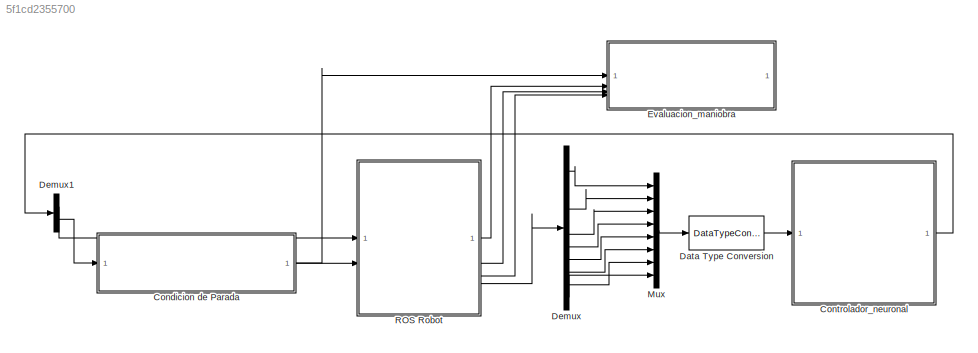
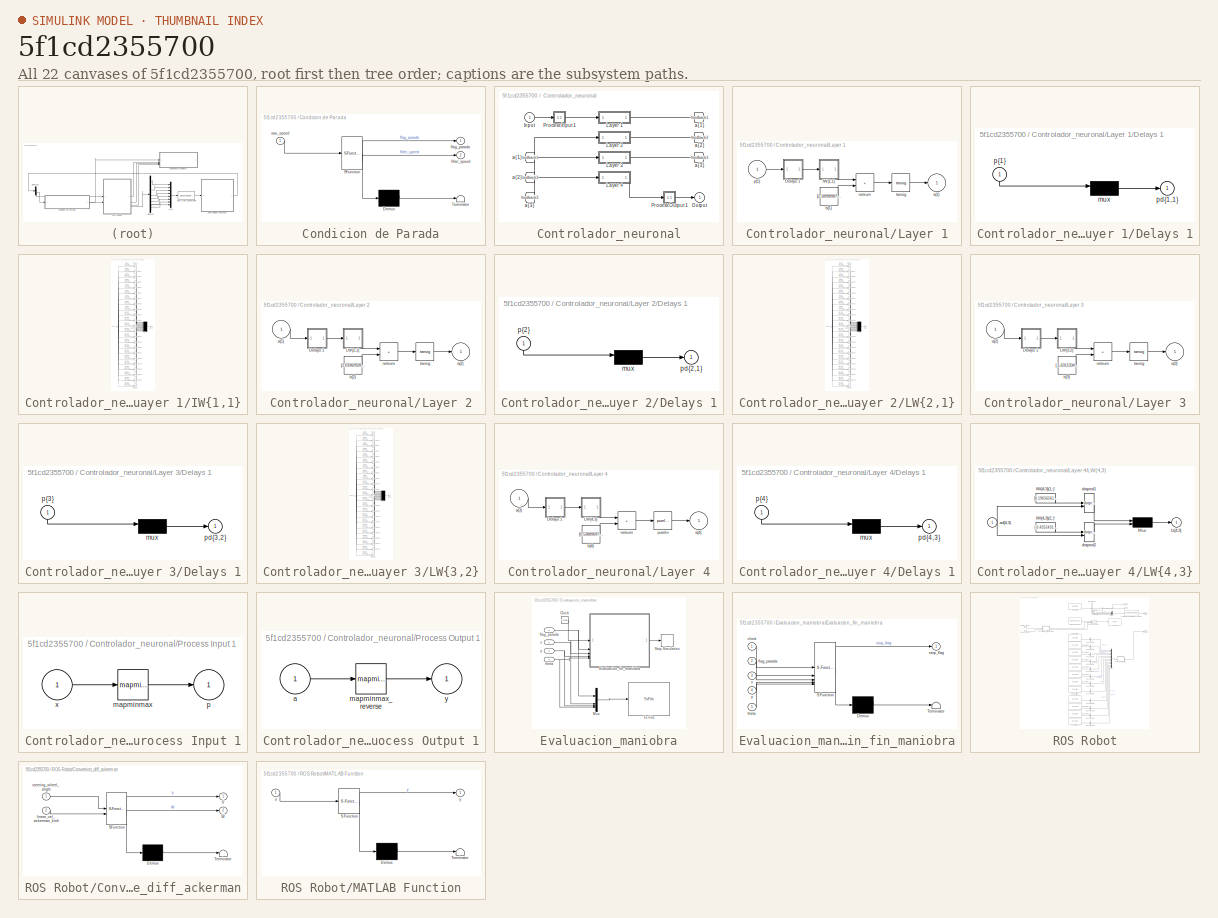
[diagram: thumbnail index - all 22 canvases of the model, root first then tree order]
MODEL slx_5f1cd2355700
KIND model
CONFIG AbsTol = auto
CONFIG EnableMultiTasking = off
CONFIG FixedStep = 0.1
CONFIG MaxStep = auto
CONFIG MinStep = auto
CONFIG RelTol = 1e-3
CONFIG SampleTimeConstraint = Unconstrained
CONFIG SolverName = FixedStepDiscrete
CONFIG StartTime = 0.0
CONFIG StopTime = 200
BLOCK [SubSystem] Condicion de Parada
  ErrorFcn = Stateflow.Translate.translate
  PermitHierarchicalResolution = ExplicitOnly
  SFBlockType = MATLAB Function
  TreatAsAtomicUnit = on
BLOCK [Demux] Condicion de Parada/ Demux 
  Outputs = 1
BLOCK [S-Function] Condicion de Parada/ SFunction 
  EnableBusSupport = on
  FunctionName = sf_sfun
  PortCounts = [1 3]
  SFcnIsStateOwnerBlock = off
  SFunctionDeploymentMode = off
  Tag = Stateflow S-Function 3
BLOCK [Terminator] Condicion de Parada/ Terminator 
BLOCK [Outport] Condicion de Parada/filter_speed
  Port = 2
BLOCK [Outport] Condicion de Parada/flag_parada
BLOCK [Inport] Condicion de Parada/raw_speed
BLOCK [SubSystem] Controlador_neuronal
BLOCK [From] Controlador_neuronal/ a{1} 
  GotoTag = feedback1
BLOCK [From] Controlador_neuronal/ a{2} 
  GotoTag = feedback2
BLOCK [From] Controlador_neuronal/ a{3} 
  GotoTag = feedback3
BLOCK [Inport] Controlador_neuronal/Input
  PortDimensions = 8
  SampleTime = 0.1
BLOCK [SubSystem] Controlador_neuronal/Layer 1
BLOCK [SubSystem] Controlador_neuronal/Layer 1/Delays 1
BLOCK [Mux] Controlador_neuronal/Layer 1/Delays 1/mux
  Inputs = 1
BLOCK [Outport] Controlador_neuronal/Layer 1/Delays 1/pd{1,1}
BLOCK [Inport] Controlador_neuronal/Layer 1/Delays 1/p{1}
  NameLocation = left
  PortDimensions = 8
  SampleTime = 0.1
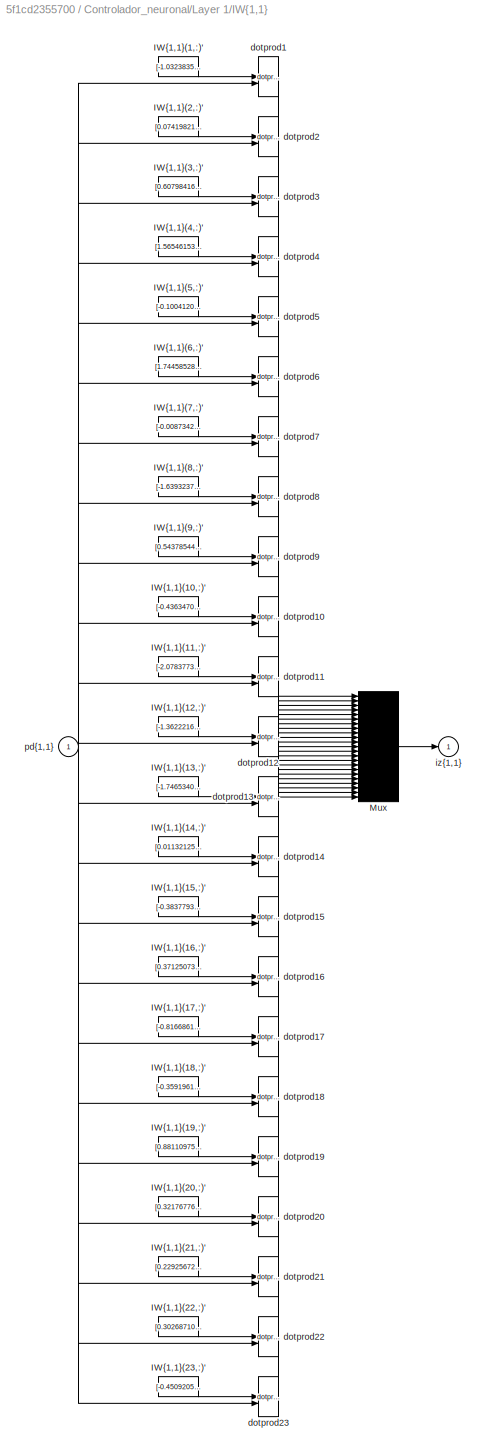
BLOCK [SubSystem] Controlador_neuronal/Layer 1/IW{1,1}
BLOCK [Constant] Controlador_neuronal/Layer 1/IW{1,1}/IW{1,1}(1,:)'
  Value = [-1.0323835115870385603642489513731561601161956787109375;-0.662748352782397187610285982373170554637908935546875;-1.124024956396129315550069804885424673557281494140625;-0.276215982503112134072154049135860987007617950439453125;0.1451069643729025193668036308736191131174564361572265625;0.62433035441768947038099213386885821819305419921875;-1.1954872958676181493586909709847532212734222412109375;0.380765...<+49ch>
BLOCK [Constant] Controlador_neuronal/Layer 1/IW{1,1}/IW{1,1}(10,:)'
  Value = [-0.43634709204774957402861446098540909588336944580078125;-0.474138862885270684355276671340106986463069915771484375;-0.84006199844505646812109489474096335470676422119140625;0.41698026315109804063041565314051695168018341064453125;-1.61243710553611041547128479578532278537750244140625;0.1512470527089431471257086059267749078571796417236328125;-1.3947188372741019524170269505702890455722808837890625;0.5...<+52ch>
BLOCK [Constant] Controlador_neuronal/Layer 1/IW{1,1}/IW{1,1}(11,:)'
  Value = [-2.078377389654292084486542080412618815898895263671875;-0.60220929450905680280214937738492153584957122802734375;0.660245252180000630204403933021239936351776123046875;1.462202544408835347411468319478444755077362060546875;-0.0190175995969139068064723829820650280453264713287353515625;0.231137195405405615478144909502589143812656402587890625;-0.054856708607900518670508205332225770689547061920166015625...<+62ch>
BLOCK [Constant] Controlador_neuronal/Layer 1/IW{1,1}/IW{1,1}(12,:)'
  Value = [-1.36222166751332540712837726459838449954986572265625;1.0016722989801614129845575007493607699871063232421875;-0.89306725566922029457828102749772369861602783203125;0.52408411717550063002590832184068858623504638671875;1.8545925634309818885725462678237818181514739990234375;0.1148526572678375268221628857645555399358272552490234375;-2.167596709631685047980909075704403221607208251953125;-1.111591482362...<+40ch>
BLOCK [Constant] Controlador_neuronal/Layer 1/IW{1,1}/IW{1,1}(13,:)'
  Value = [-1.7465340572918328643226004714961163699626922607421875;-0.922466463641959943942083555157296359539031982421875;0.6574349280586151422767215990461409091949462890625;-0.279256236682935699011665064972476102411746978759765625;0.5705033156244609937601808269391767680644989013671875;0.77419844629580925055023499226081185042858123779296875;0.65579087940927072164498667916632257401943206787109375;-0.78510864...<+43ch>
BLOCK [Constant] Controlador_neuronal/Layer 1/IW{1,1}/IW{1,1}(14,:)'
  Value = [0.0113212579440945919351246828910007025115191936492919921875;1.04709757013683724125030494178645312786102294921875;0.41497762383395819796305659110657870769500732421875;0.60260350483627245221640578165533952414989471435546875;0.99268551449280029164157213017460890114307403564453125;-0.398335619505374494142557750819833017885684967041015625;1.207628484584269745738538404111750423908233642578125;3.687509...<+46ch>
BLOCK [Constant] Controlador_neuronal/Layer 1/IW{1,1}/IW{1,1}(15,:)'
  Value = [-0.38377932461427610721926839687512256205081939697265625;0.406743993000372616730686559094465337693691253662109375;0.71129753247807681049152961350046098232269287109375;-0.069756885233140497604154006694443523883819580078125;1.7860143160125956374173483709455467760562896728515625;-1.3490225782255735875736490925191901624202728271484375;1.4050908519436371424404796925955452024936676025390625;-0.05223033...<+47ch>
BLOCK [Constant] Controlador_neuronal/Layer 1/IW{1,1}/IW{1,1}(16,:)'
  Value = [0.371250733367427365738677735862438566982746124267578125;-1.02948600009739177352230399264954030513763427734375;0.00090883459539344013666806176843238063156604766845703125;-1.7129866031737066567330884936382062733173370361328125;-1.04549034996919854023644802509807050228118896484375;0.34589358476395648533951998615521006286144256591796875;0.6169009282549742234635914428508840501308441162109375;4.822490...<+45ch>
BLOCK [Constant] Controlador_neuronal/Layer 1/IW{1,1}/IW{1,1}(17,:)'
  Value = [-0.8166861320025160519975315764895640313625335693359375;-1.095880952306397926321324121090583503246307373046875;-0.82860408616692193817243605735711753368377685546875;-1.44701861197883108189898848650045692920684814453125;1.9442022233068299019720370779396034777164459228515625;-0.1152740797855134891047867995439446531236171722412109375;0.76027024106736040831577838616794906556606292724609375;-0.0675824...<+50ch>
BLOCK [Constant] Controlador_neuronal/Layer 1/IW{1,1}/IW{1,1}(18,:)'
  Value = [-0.359196116756969552330502892800723202526569366455078125;-1.3027467382158419706428276185761205852031707763671875;-0.463816165226394405696197509314515627920627593994140625;1.085930824334969457822808180935680866241455078125;-0.95210816034995093826154288763063959777355194091796875;1.1955726348495543387429052017978392541408538818359375;-0.7404842592574112369874228534172289073467254638671875;0.449360...<+47ch>
BLOCK [Constant] Controlador_neuronal/Layer 1/IW{1,1}/IW{1,1}(19,:)'
  Value = [0.881109750125181445667976731783710420131683349609375;-0.57397189604981846411391188667039386928081512451171875;0.63778962439331632339190036873333156108856201171875;-0.75223846735990151923800794975250028073787689208984375;1.0138584819912705992095425244770012795925140380859375;0.431662617464074138684537729204748757183551788330078125;0.73550713987493299139686087073641829192638397216796875;0.69554754...<+45ch>
BLOCK [Constant] Controlador_neuronal/Layer 1/IW{1,1}/IW{1,1}(2,:)'
  Value = [0.07419821851373793741846185412214254029095172882080078125;-0.7652603431334441541622481963713653385639190673828125;-0.599005639238727294326736227958463132381439208984375;-0.25218402354170599277694009288097731769084930419921875;0.221290472816533745348266393193625845015048980712890625;-1.374749617142764890331818605773150920867919921875;-1.1279665903727913445209196652285754680633544921875;-1.0865069...<+46ch>
BLOCK [Constant] Controlador_neuronal/Layer 1/IW{1,1}/IW{1,1}(20,:)'
  Value = [0.321767765038527830956383013472077436745166778564453125;-0.7847346194806561481271955926786176860332489013671875;-0.31896016477491462293158974716789089143276214599609375;1.1333610617519427332666737129329703748226165771484375;-0.04187485933413932770452703380215098150074481964111328125;-0.033381654186540161977081453414939460344612598419189453125;1.733185032773980394082968814473133534193038940429687...<+50ch>
BLOCK [Constant] Controlador_neuronal/Layer 1/IW{1,1}/IW{1,1}(21,:)'
  Value = [0.2292567236501221739075617733760736882686614990234375;-0.98395286285468108733454073444590903818607330322265625;0.11576102419114527031229755493768607266247272491455078125;-0.99545247710509576766213513110415078699588775634765625;0.75886048142042616948543809485272504389286041259765625;0.31042868832629988418148059281520545482635498046875;1.0936867130970300276970874620019458234310150146484375;0.31376...<+50ch>
BLOCK [Constant] Controlador_neuronal/Layer 1/IW{1,1}/IW{1,1}(22,:)'
  Value = [0.302687103444314209443888330497429706156253814697265625;0.7060859056428896440849030113895423710346221923828125;-0.76804304474793216872541279371944256126880645751953125;-0.8766387978377656597928080373094417154788970947265625;0.91726197974738143958717273562797345221042633056640625;0.92317513181706567504392069167806766927242279052734375;0.69189906684053692487168518709950149059295654296875;0.5869844...<+44ch>
BLOCK [Constant] Controlador_neuronal/Layer 1/IW{1,1}/IW{1,1}(23,:)'
  Value = [-0.450920572734072322429454970915685407817363739013671875;-1.5104841312960537447196429639006964862346649169921875;0.17567393099566086522855812290799804031848907470703125;0.253787021864402329018872706001275219023227691650390625;-0.5103990209164745994740997048211283981800079345703125;1.3449405596714896216070656009833328425884246826171875;-0.34342926651740068866303090544533915817737579345703125;0.42...<+53ch>
BLOCK [Constant] Controlador_neuronal/Layer 1/IW{1,1}/IW{1,1}(3,:)'
  Value = [0.6079841638392071700991436955519020557403564453125;-0.92958024256031424048529743231483735144138336181640625;0.812943160248499996356486008153297007083892822265625;-0.06330256929907772389665154832982807420194149017333984375;1.2888100242345268409138725473894737660884857177734375;-1.4263862537283003018018234797636978328227996826171875;0.00550992582981742022585347484664453077130019664764404296875;-2....<+50ch>
BLOCK [Constant] Controlador_neuronal/Layer 1/IW{1,1}/IW{1,1}(4,:)'
  Value = [1.5654615363656809723380547438864596188068389892578125;-1.0033500776762387385332431222195737063884735107421875;-0.31271635970135436277672624783008359372615814208984375;-0.54892913422925093680504460280644707381725311279296875;-1.2124660328510026285897538400604389607906341552734375;1.49577876093032369197999287280254065990447998046875;1.154606578418775786332162169856019318103790283203125;-1.16374380...<+45ch>
BLOCK [Constant] Controlador_neuronal/Layer 1/IW{1,1}/IW{1,1}(5,:)'
  Value = [-0.10041207916230800167856074267547228373587131500244140625;-1.605630162338432587176839660969562828540802001953125;0.80969647666742960989694211093592457473278045654296875;-0.931485779530598190234513822360895574092864990234375;-0.322550786801951983040481763964635320007801055908203125;0.636315563877304146700453202356584370136260986328125;0.410390716871258443010361816050135530531406402587890625;0.66...<+50ch>
BLOCK [Constant] Controlador_neuronal/Layer 1/IW{1,1}/IW{1,1}(6,:)'
  Value = [1.7445852812071205306665433454327285289764404296875;-0.279928412255346703574332423158921301364898681640625;1.3954672160773375910736149307922460138797760009765625;0.79496741734211451291258754281443543732166290283203125;3.128930900556458283290339750237762928009033203125;0.93847951335770785075141020570299588143825531005859375;0.11972522659379046527927670240387669764459133148193359375;0.7015997162729...<+40ch>
BLOCK [Constant] Controlador_neuronal/Layer 1/IW{1,1}/IW{1,1}(7,:)'
  Value = [-0.00873425115934537039941165659229227458126842975616455078125;-0.8014317821794432195048329958808608353137969970703125;-1.13688213168189111712536032428033649921417236328125;-0.497695248227237041493964397886884398758411407470703125;-0.5733209129825203032027047811425291001796722412109375;1.28000672244989299741746435756795108318328857421875;0.70103197364161362603596217013546265661716461181640625;-0....<+56ch>
BLOCK [Constant] Controlador_neuronal/Layer 1/IW{1,1}/IW{1,1}(8,:)'
  Value = [-1.6393237797739477201730551314540207386016845703125;0.866888123693438483741147138061933219432830810546875;0.047340278207751405881165140954180969856679439544677734375;-1.627117884268043379591972552589140832424163818359375;0.2471193531572903889781400721403770148754119873046875;1.6779943639814056677295184272225014865398406982421875;0.68812140759221784858112869187607429921627044677734375;-0.93125639...<+45ch>
BLOCK [Constant] Controlador_neuronal/Layer 1/IW{1,1}/IW{1,1}(9,:)'
  Value = [0.5437854464652274177893787054927088320255279541015625;2.041679225153982368823335491470061242580413818359375;-0.6172884928575619323254386472399346530437469482421875;-1.0918045540390564074328949573100544512271881103515625;0.03818303548358424615027928439303650520741939544677734375;-0.1671130027316798660752539262830396182835102081298828125;1.287094367065680255990400837617926299571990966796875;0.1898...<+50ch>
BLOCK [Mux] Controlador_neuronal/Layer 1/IW{1,1}/Mux
  Inputs = 23
BLOCK [Reference] Controlador_neuronal/Layer 1/IW{1,1}/dotprod1  REF=neural/Weight Functions/dotprod
  SourceBlock = neural/Weight Functions/dotprod
  SourceType = DOTPROD
BLOCK [Reference] Controlador_neuronal/Layer 1/IW{1,1}/dotprod10  REF=neural/Weight Functions/dotprod
  SourceBlock = neural/Weight Functions/dotprod
  SourceType = DOTPROD
BLOCK [Reference] Controlador_neuronal/Layer 1/IW{1,1}/dotprod11  REF=neural/Weight Functions/dotprod
  SourceBlock = neural/Weight Functions/dotprod
  SourceType = DOTPROD
BLOCK [Reference] Controlador_neuronal/Layer 1/IW{1,1}/dotprod12  REF=neural/Weight Functions/dotprod
  SourceBlock = neural/Weight Functions/dotprod
  SourceType = DOTPROD
BLOCK [Reference] Controlador_neuronal/Layer 1/IW{1,1}/dotprod13  REF=neural/Weight Functions/dotprod
  SourceBlock = neural/Weight Functions/dotprod
  SourceType = DOTPROD
BLOCK [Reference] Controlador_neuronal/Layer 1/IW{1,1}/dotprod14  REF=neural/Weight Functions/dotprod
  SourceBlock = neural/Weight Functions/dotprod
  SourceType = DOTPROD
BLOCK [Reference] Controlador_neuronal/Layer 1/IW{1,1}/dotprod15  REF=neural/Weight Functions/dotprod
  SourceBlock = neural/Weight Functions/dotprod
  SourceType = DOTPROD
BLOCK [Reference] Controlador_neuronal/Layer 1/IW{1,1}/dotprod16  REF=neural/Weight Functions/dotprod
  SourceBlock = neural/Weight Functions/dotprod
  SourceType = DOTPROD
BLOCK [Reference] Controlador_neuronal/Layer 1/IW{1,1}/dotprod17  REF=neural/Weight Functions/dotprod
  SourceBlock = neural/Weight Functions/dotprod
  SourceType = DOTPROD
BLOCK [Reference] Controlador_neuronal/Layer 1/IW{1,1}/dotprod18  REF=neural/Weight Functions/dotprod
  SourceBlock = neural/Weight Functions/dotprod
  SourceType = DOTPROD
BLOCK [Reference] Controlador_neuronal/Layer 1/IW{1,1}/dotprod19  REF=neural/Weight Functions/dotprod
  SourceBlock = neural/Weight Functions/dotprod
  SourceType = DOTPROD
BLOCK [Reference] Controlador_neuronal/Layer 1/IW{1,1}/dotprod2  REF=neural/Weight Functions/dotprod
  SourceBlock = neural/Weight Functions/dotprod
  SourceType = DOTPROD
BLOCK [Reference] Controlador_neuronal/Layer 1/IW{1,1}/dotprod20  REF=neural/Weight Functions/dotprod
  SourceBlock = neural/Weight Functions/dotprod
  SourceType = DOTPROD
BLOCK [Reference] Controlador_neuronal/Layer 1/IW{1,1}/dotprod21  REF=neural/Weight Functions/dotprod
  SourceBlock = neural/Weight Functions/dotprod
  SourceType = DOTPROD
BLOCK [Reference] Controlador_neuronal/Layer 1/IW{1,1}/dotprod22  REF=neural/Weight Functions/dotprod
  SourceBlock = neural/Weight Functions/dotprod
  SourceType = DOTPROD
BLOCK [Reference] Controlador_neuronal/Layer 1/IW{1,1}/dotprod23  REF=neural/Weight Functions/dotprod
  SourceBlock = neural/Weight Functions/dotprod
  SourceType = DOTPROD
BLOCK [Reference] Controlador_neuronal/Layer 1/IW{1,1}/dotprod3  REF=neural/Weight Functions/dotprod
  SourceBlock = neural/Weight Functions/dotprod
  SourceType = DOTPROD
BLOCK [Reference] Controlador_neuronal/Layer 1/IW{1,1}/dotprod4  REF=neural/Weight Functions/dotprod
  SourceBlock = neural/Weight Functions/dotprod
  SourceType = DOTPROD
BLOCK [Reference] Controlador_neuronal/Layer 1/IW{1,1}/dotprod5  REF=neural/Weight Functions/dotprod
  SourceBlock = neural/Weight Functions/dotprod
  SourceType = DOTPROD
BLOCK [Reference] Controlador_neuronal/Layer 1/IW{1,1}/dotprod6  REF=neural/Weight Functions/dotprod
  SourceBlock = neural/Weight Functions/dotprod
  SourceType = DOTPROD
BLOCK [Reference] Controlador_neuronal/Layer 1/IW{1,1}/dotprod7  REF=neural/Weight Functions/dotprod
  SourceBlock = neural/Weight Functions/dotprod
  SourceType = DOTPROD
BLOCK [Reference] Controlador_neuronal/Layer 1/IW{1,1}/dotprod8  REF=neural/Weight Functions/dotprod
  SourceBlock = neural/Weight Functions/dotprod
  SourceType = DOTPROD
BLOCK [Reference] Controlador_neuronal/Layer 1/IW{1,1}/dotprod9  REF=neural/Weight Functions/dotprod
  SourceBlock = neural/Weight Functions/dotprod
  SourceType = DOTPROD
BLOCK [Outport] Controlador_neuronal/Layer 1/IW{1,1}/iz{1,1}
BLOCK [Inport] Controlador_neuronal/Layer 1/IW{1,1}/pd{1,1}
  PortDimensions = 8
  SampleTime = 0.1
BLOCK [Outport] Controlador_neuronal/Layer 1/a{1}
  InitialOutput = [0;0;0;0;0;0;0;0;0;0;0;0;0;0;0;0;0;0;0;0;0;0;0]
BLOCK [Constant] Controlador_neuronal/Layer 1/b{1}
  Value = [2.18998987839808645361472372314892709255218505859375;-1.7887583387199128548417093043099157512187957763671875;2.105021493479757310751665499992668628692626953125;-1.3358732442469705148369030212052166461944580078125;-1.6399243820124420611961113536381162703037261962890625;-1.2608286449985808275187082472257316112518310546875;1.4290229316315425922567783345584757626056671142578125;0.66496131210369446851...<+882ch>
BLOCK [Sum] Controlador_neuronal/Layer 1/netsum
  IconShape = rectangular
  InputSameDT = on
  Inputs = 2
  OutDataTypeStr = Inherit: Same as first input
  SaturateOnIntegerOverflow = on
BLOCK [Inport] Controlador_neuronal/Layer 1/p{1}
  PortDimensions = 8
  SampleTime = 0.1
BLOCK [Reference] Controlador_neuronal/Layer 1/tansig  REF=neural/Transfer Functions/tansig
  SourceBlock = neural/Transfer Functions/tansig
  SourceType = TANSIG
BLOCK [SubSystem] Controlador_neuronal/Layer 2
BLOCK [SubSystem] Controlador_neuronal/Layer 2/Delays 1
BLOCK [Mux] Controlador_neuronal/Layer 2/Delays 1/mux
  Inputs = 1
BLOCK [Outport] Controlador_neuronal/Layer 2/Delays 1/pd{2,1}
BLOCK [Inport] Controlador_neuronal/Layer 2/Delays 1/p{2}
  NameLocation = left
  PortDimensions = 23
  SampleTime = 0.1
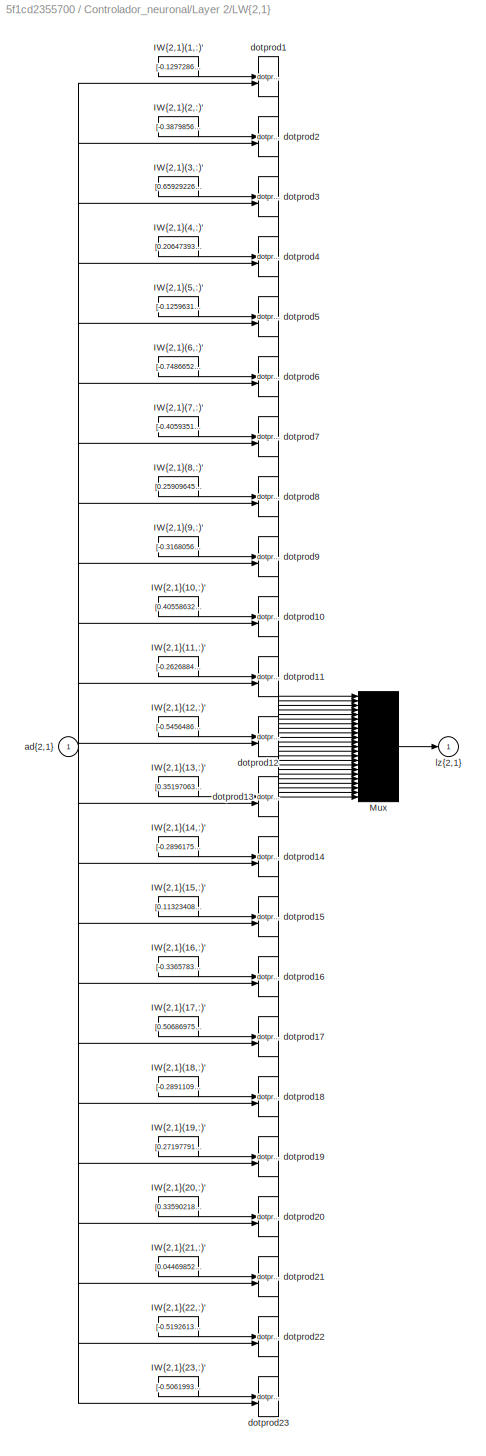
BLOCK [SubSystem] Controlador_neuronal/Layer 2/LW{2,1}
BLOCK [Constant] Controlador_neuronal/Layer 2/LW{2,1}/IW{2,1}(1,:)'
  Value = [-0.1297286872335229046537818931028596125543117523193359375;0.98567105462011650462983425313723273575305938720703125;-0.455370294215045989805190629340359009802341461181640625;-2.218659008965680801139797040377743542194366455078125;-0.64813081002500194660598253904026933014392852783203125;0.586984012264776477962868739268742501735687255859375;0.5708619990671193189513132892898283898830413818359375;-0.19...<+909ch>
BLOCK [Constant] Controlador_neuronal/Layer 2/LW{2,1}/IW{2,1}(10,:)'
  Value = [0.405586327021521253488600677883368916809558868408203125;0.73708105789914146743768696978804655373096466064453125;0.4311646892506686423729433954576961696147918701171875;0.355499814961369675625491026949021033942699432373046875;0.89621472894911580198140654829330742359161376953125;0.51097558376397234081167653130250982940196990966796875;-0.1693039096138801158364373122822144068777561187744140625;-1.937...<+909ch>
BLOCK [Constant] Controlador_neuronal/Layer 2/LW{2,1}/IW{2,1}(11,:)'
  Value = [-0.262688424321719404819219789715134538710117340087890625;0.0390133923671480420392043697574990801513195037841796875;1.1466346205509665434618682411382906138896942138671875;0.77309501545165459912567484934697858989238739013671875;-0.02861878316849451875381049603674910031259059906005859375;1.649082874671840226454833100433461368083953857421875;-0.136368118923963110855623881434439681470394134521484375;...<+909ch>
BLOCK [Constant] Controlador_neuronal/Layer 2/LW{2,1}/IW{2,1}(12,:)'
  Value = [-0.54564867535763872385956574362353421747684478759765625;-0.0690842206841981720799594768323004245758056640625;0.286331672092331512846641317082685418426990509033203125;0.66574826265013531401137925058719702064990997314453125;-0.56657393381343001959038474524277262389659881591796875;0.3142334220921789711411520329420454800128936767578125;0.319807791807650954041264412808232009410858154296875;-0.3390970...<+898ch>
BLOCK [Constant] Controlador_neuronal/Layer 2/LW{2,1}/IW{2,1}(13,:)'
  Value = [0.3519706390371830639907102522556670010089874267578125;-0.408675684179844289634075948924873955547809600830078125;0.37745796340409831781670391137595288455486297607421875;-0.209231712753475906918509963361429981887340545654296875;-0.0099067359220317008361433863683487288653850555419921875;-1.261706325845700416010686240042559802532196044921875;0.466414124245531247492380089170183055102825164794921875;-...<+908ch>
BLOCK [Constant] Controlador_neuronal/Layer 2/LW{2,1}/IW{2,1}(14,:)'
  Value = [-0.2896175366933160244542477812501601874828338623046875;0.5311389841076989970503063887008465826511383056640625;0.35415690375328823247258469564258120954036712646484375;0.7858272825013961071505264044390060007572174072265625;-0.01267774077706623585271028531451520393602550029754638671875;0.8386906605280859405837645681458525359630584716796875;-0.0621605622049144213026039551550638861954212188720703125;...<+919ch>
BLOCK [Constant] Controlador_neuronal/Layer 2/LW{2,1}/IW{2,1}(15,:)'
  Value = [0.113234081652415052854365740131470374763011932373046875;0.210611713426691105066623777020140551030635833740234375;0.10024728794749045157619349311062251217663288116455078125;0.424582976475204432187382508345763199031352996826171875;-0.496351890397097983420593436676426790654659271240234375;-0.36142558803905766584563252763473428785800933837890625;0.50666008059933620444326152210123836994171142578125;1...<+895ch>
BLOCK [Constant] Controlador_neuronal/Layer 2/LW{2,1}/IW{2,1}(16,:)'
  Value = [-0.33657837236558629800953212907188571989536285400390625;0.6492976482171675112198272472596727311611175537109375;0.3246800214972764830889673248748295009136199951171875;-0.7409009838670519432213268373743630945682525634765625;0.16826192168134124216294367215596139430999755859375;-0.0532555647960377687155641979188658297061920166015625;0.085489935527913452073534017472411505877971649169921875;-0.2937729...<+898ch>
BLOCK [Constant] Controlador_neuronal/Layer 2/LW{2,1}/IW{2,1}(17,:)'
  Value = [0.5068697525928715919008027412928640842437744140625;0.46398324140134794557610575793660245835781097412109375;0.36591762214813738918195440419367514550685882568359375;-1.24385957624387533115850601461715996265411376953125;0.397933605215642860475355746530112810432910919189453125;0.43269079090586382019267830401076935231685638427734375;0.06581769808228700446850467642434523440897464752197265625;-0.363996...<+892ch>
BLOCK [Constant] Controlador_neuronal/Layer 2/LW{2,1}/IW{2,1}(18,:)'
  Value = [-0.28911095128320962732715315723908133804798126220703125;0.61909368582307788830831896120798774063587188720703125;0.3056624460282530986177107479306869208812713623046875;0.6001507940839261312504504530807025730609893798828125;-0.4531726922249055267144512981758452951908111572265625;-0.79031688510764563915245162206701934337615966796875;-0.19084668960585660091311410724301822483539581298828125;1.0980565...<+895ch>
BLOCK [Constant] Controlador_neuronal/Layer 2/LW{2,1}/IW{2,1}(19,:)'
  Value = [0.2719779105443607125636162891169078648090362548828125;-0.31531273486971189701222328949370421469211578369140625;1.7078209218545772341002475513960234820842742919921875;0.29137916022446097574771783911273814737796783447265625;0.62925344717080478051940417572041042149066925048828125;-0.340084438348736972645980358720407821238040924072265625;0.660279637161509835863171247183345258235931396484375;-0.30669...<+899ch>
BLOCK [Constant] Controlador_neuronal/Layer 2/LW{2,1}/IW{2,1}(2,:)'
  Value = [-0.38798560183628438835512497462332248687744140625;-0.1754873156457221750059716214309446513652801513671875;-0.04395754065009339905945040527512901462614536285400390625;-0.2440627192622590035941954056397662498056888580322265625;0.0375714056858706124675251203370862640440464019775390625;-0.2718003361371048587358245640643872320652008056640625;0.07982715681512138339304129885931615717709064483642578125;...<+894ch>
BLOCK [Constant] Controlador_neuronal/Layer 2/LW{2,1}/IW{2,1}(20,:)'
  Value = [0.33590218473427391199237490582163445651531219482421875;-0.57506350812295148333674887908273376524448394775390625;-0.20749603308303321558270226887543685734272003173828125;0.73096938237738806609655739521258510649204254150390625;0.284886128491380230531859751863521523773670196533203125;0.410250120193662415335467130717006511986255645751953125;0.351009079851605731992236769656301476061344146728515625;0....<+907ch>
BLOCK [Constant] Controlador_neuronal/Layer 2/LW{2,1}/IW{2,1}(21,:)'
  Value = [0.04469852873317710362233157184164156205952167510986328125;0.55732553360289427413221119422814808785915374755859375;-0.10423615735940190696329210595649783499538898468017578125;-0.191850323004802703064086699669132940471172332763671875;0.031852064412095308643113611424269038252532482147216796875;-0.14520458074122732927691004078951664268970489501953125;-0.4834404550979439774138768370903562754392623901...<+915ch>
BLOCK [Constant] Controlador_neuronal/Layer 2/LW{2,1}/IW{2,1}(22,:)'
  Value = [-0.51926132880831488147777008634875528514385223388671875;-0.09578144932148635604107766994275152683258056640625;-1.3439546912742990070199766705627553164958953857421875;1.325424805227625402181956815184094011783599853515625;0.55836045930516942092936005792580544948577880859375;-2.423451368608862566134121152572333812713623046875;0.1832337243288767181237375325508764944970607757568359375;0.6103121562145...<+889ch>
BLOCK [Constant] Controlador_neuronal/Layer 2/LW{2,1}/IW{2,1}(23,:)'
  Value = [-0.50619937165167294690348853691830299794673919677734375;0.2060458529786134140859843455473310314118862152099609375;0.2356843202677876558670533313488704152405261993408203125;0.88479565755674094429394926919485442340373992919921875;-0.86957105229686515457387940841726958751678466796875;0.56813816659811255949108499407884664833545684814453125;0.315905456522168226474178709395346231758594512939453125;0.2...<+921ch>
BLOCK [Constant] Controlador_neuronal/Layer 2/LW{2,1}/IW{2,1}(3,:)'
  Value = [0.6592922693053344662672543563530780375003814697265625;0.09187670364079091045450553565387963317334651947021484375;0.429201047505099964052277528026024810969829559326171875;0.11907680417206438494570619468504446558654308319091796875;-0.403090661184433651786918062498443759977817535400390625;0.0997623174441298055103999331549857743084430694580078125;-0.17067558714341718451024121350201312452554702758789...<+906ch>
BLOCK [Constant] Controlador_neuronal/Layer 2/LW{2,1}/IW{2,1}(4,:)'
  Value = [0.2064739378140164893782326771543012000620365142822265625;-0.73308726550077374373159955212031491100788116455078125;-0.32438578174810073218026218455634079873561859130859375;-0.427792919547227368237685141139081679284572601318359375;-0.6277289155358587446897900008480064570903778076171875;-0.46275746666234518489346783098881132900714874267578125;0.60375319800925375535172179297660477459430694580078125;...<+920ch>
BLOCK [Constant] Controlador_neuronal/Layer 2/LW{2,1}/IW{2,1}(5,:)'
  Value = [-0.125963179095003763308113775565288960933685302734375;-0.2154550413369291372855940380759420804679393768310546875;-0.91334980787160191528784025649656541645526885986328125;0.535776080271791688147686727461405098438262939453125;0.64095105902729720970256721557234413921833038330078125;0.2437023323663975726827146672803792171180248260498046875;0.33012803445746785602210593424388207495212554931640625;0.75...<+903ch>
BLOCK [Constant] Controlador_neuronal/Layer 2/LW{2,1}/IW{2,1}(6,:)'
  Value = [-0.74866521630563365174992895845207385718822479248046875;0.578167529056932583131356295780278742313385009765625;0.86210946105132146843885720954858697950839996337890625;-0.153376890105486995974359842875855974853038787841796875;1.5545098256591944885229850115138106048107147216796875;1.74343960591678470706256121047772467136383056640625;-0.0089202797631159035096626297445254749618470668792724609375;-0.5...<+906ch>
BLOCK [Constant] Controlador_neuronal/Layer 2/LW{2,1}/IW{2,1}(7,:)'
  Value = [-0.40593513585684981581636066039209254086017608642578125;-0.26053965129044309723127526012831367552280426025390625;0.454882557006068666272113887316663749516010284423828125;-0.448423605257294022319314308333559893071651458740234375;0.48084737736174842925862549236626364290714263916015625;0.08767042729513128962448575975940912030637264251708984375;-0.5336370269508667885105523964739404618740081787109375...<+899ch>
BLOCK [Constant] Controlador_neuronal/Layer 2/LW{2,1}/IW{2,1}(8,:)'
  Value = [0.259096451085437384787013570530689321458339691162109375;-0.1893360476545110915314040767043479718267917633056640625;-0.15571094702547494392774751759134232997894287109375;0.00746446661882023583534095934055585530586540699005126953125;-0.1477070887552915656737440031065489165484905242919921875;-0.7983830523617587715534682502038776874542236328125;0.23353188149196477119140524791873758658766746520996093...<+918ch>
BLOCK [Constant] Controlador_neuronal/Layer 2/LW{2,1}/IW{2,1}(9,:)'
  Value = [-0.316805671519544362890741240335046313703060150146484375;0.378789534182916109994465614363434724509716033935546875;0.77280138030775180624232234549708664417266845703125;0.1446450016237408042751866332764620892703533172607421875;0.04496907401649241631247377881663851439952850341796875;-0.69737557080926182440094862613477744162082672119140625;0.2142088784412710389393197374374722130596637725830078125;0....<+900ch>
BLOCK [Mux] Controlador_neuronal/Layer 2/LW{2,1}/Mux
  Inputs = 23
BLOCK [Inport] Controlador_neuronal/Layer 2/LW{2,1}/ad{2,1}
  PortDimensions = 23
  SampleTime = 0.1
BLOCK [Reference] Controlador_neuronal/Layer 2/LW{2,1}/dotprod1  REF=neural/Weight Functions/dotprod
  SourceBlock = neural/Weight Functions/dotprod
  SourceType = DOTPROD
BLOCK [Reference] Controlador_neuronal/Layer 2/LW{2,1}/dotprod10  REF=neural/Weight Functions/dotprod
  SourceBlock = neural/Weight Functions/dotprod
  SourceType = DOTPROD
BLOCK [Reference] Controlador_neuronal/Layer 2/LW{2,1}/dotprod11  REF=neural/Weight Functions/dotprod
  SourceBlock = neural/Weight Functions/dotprod
  SourceType = DOTPROD
BLOCK [Reference] Controlador_neuronal/Layer 2/LW{2,1}/dotprod12  REF=neural/Weight Functions/dotprod
  SourceBlock = neural/Weight Functions/dotprod
  SourceType = DOTPROD
BLOCK [Reference] Controlador_neuronal/Layer 2/LW{2,1}/dotprod13  REF=neural/Weight Functions/dotprod
  SourceBlock = neural/Weight Functions/dotprod
  SourceType = DOTPROD
BLOCK [Reference] Controlador_neuronal/Layer 2/LW{2,1}/dotprod14  REF=neural/Weight Functions/dotprod
  SourceBlock = neural/Weight Functions/dotprod
  SourceType = DOTPROD
BLOCK [Reference] Controlador_neuronal/Layer 2/LW{2,1}/dotprod15  REF=neural/Weight Functions/dotprod
  SourceBlock = neural/Weight Functions/dotprod
  SourceType = DOTPROD
BLOCK [Reference] Controlador_neuronal/Layer 2/LW{2,1}/dotprod16  REF=neural/Weight Functions/dotprod
  SourceBlock = neural/Weight Functions/dotprod
  SourceType = DOTPROD
BLOCK [Reference] Controlador_neuronal/Layer 2/LW{2,1}/dotprod17  REF=neural/Weight Functions/dotprod
  SourceBlock = neural/Weight Functions/dotprod
  SourceType = DOTPROD
BLOCK [Reference] Controlador_neuronal/Layer 2/LW{2,1}/dotprod18  REF=neural/Weight Functions/dotprod
  SourceBlock = neural/Weight Functions/dotprod
  SourceType = DOTPROD
BLOCK [Reference] Controlador_neuronal/Layer 2/LW{2,1}/dotprod19  REF=neural/Weight Functions/dotprod
  SourceBlock = neural/Weight Functions/dotprod
  SourceType = DOTPROD
BLOCK [Reference] Controlador_neuronal/Layer 2/LW{2,1}/dotprod2  REF=neural/Weight Functions/dotprod
  SourceBlock = neural/Weight Functions/dotprod
  SourceType = DOTPROD
BLOCK [Reference] Controlador_neuronal/Layer 2/LW{2,1}/dotprod20  REF=neural/Weight Functions/dotprod
  SourceBlock = neural/Weight Functions/dotprod
  SourceType = DOTPROD
BLOCK [Reference] Controlador_neuronal/Layer 2/LW{2,1}/dotprod21  REF=neural/Weight Functions/dotprod
  SourceBlock = neural/Weight Functions/dotprod
  SourceType = DOTPROD
BLOCK [Reference] Controlador_neuronal/Layer 2/LW{2,1}/dotprod22  REF=neural/Weight Functions/dotprod
  SourceBlock = neural/Weight Functions/dotprod
  SourceType = DOTPROD
BLOCK [Reference] Controlador_neuronal/Layer 2/LW{2,1}/dotprod23  REF=neural/Weight Functions/dotprod
  SourceBlock = neural/Weight Functions/dotprod
  SourceType = DOTPROD
BLOCK [Reference] Controlador_neuronal/Layer 2/LW{2,1}/dotprod3  REF=neural/Weight Functions/dotprod
  SourceBlock = neural/Weight Functions/dotprod
  SourceType = DOTPROD
BLOCK [Reference] Controlador_neuronal/Layer 2/LW{2,1}/dotprod4  REF=neural/Weight Functions/dotprod
  SourceBlock = neural/Weight Functions/dotprod
  SourceType = DOTPROD
BLOCK [Reference] Controlador_neuronal/Layer 2/LW{2,1}/dotprod5  REF=neural/Weight Functions/dotprod
  SourceBlock = neural/Weight Functions/dotprod
  SourceType = DOTPROD
BLOCK [Reference] Controlador_neuronal/Layer 2/LW{2,1}/dotprod6  REF=neural/Weight Functions/dotprod
  SourceBlock = neural/Weight Functions/dotprod
  SourceType = DOTPROD
BLOCK [Reference] Controlador_neuronal/Layer 2/LW{2,1}/dotprod7  REF=neural/Weight Functions/dotprod
  SourceBlock = neural/Weight Functions/dotprod
  SourceType = DOTPROD
BLOCK [Reference] Controlador_neuronal/Layer 2/LW{2,1}/dotprod8  REF=neural/Weight Functions/dotprod
  SourceBlock = neural/Weight Functions/dotprod
  SourceType = DOTPROD
BLOCK [Reference] Controlador_neuronal/Layer 2/LW{2,1}/dotprod9  REF=neural/Weight Functions/dotprod
  SourceBlock = neural/Weight Functions/dotprod
  SourceType = DOTPROD
BLOCK [Outport] Controlador_neuronal/Layer 2/LW{2,1}/lz{2,1}
BLOCK [Inport] Controlador_neuronal/Layer 2/a{1} 
  PortDimensions = 23
  SampleTime = 0.1
BLOCK [Outport] Controlador_neuronal/Layer 2/a{2}
  InitialOutput = [0;0;0;0;0;0;0;0;0;0;0;0;0;0;0;0;0;0;0;0;0;0;0]
BLOCK [Constant] Controlador_neuronal/Layer 2/b{2}
  Value = [2.033609284098897074244405303034000098705291748046875;1.3951783085781819249149293682421557605266571044921875;-1.2207082117278822419592643200303427875041961669921875;-1.118354492735420979698801602353341877460479736328125;1.0183223829628633705368656592327170073986053466796875;0.9514114055905344979890969625557772815227508544921875;0.429057439776676596832061250097467564046382904052734375;0.8427362728...<+887ch>
BLOCK [Sum] Controlador_neuronal/Layer 2/netsum
  IconShape = rectangular
  InputSameDT = on
  Inputs = 2
  OutDataTypeStr = Inherit: Same as first input
  SaturateOnIntegerOverflow = on
BLOCK [Reference] Controlador_neuronal/Layer 2/tansig  REF=neural/Transfer Functions/tansig
  SourceBlock = neural/Transfer Functions/tansig
  SourceType = TANSIG
BLOCK [SubSystem] Controlador_neuronal/Layer 3
BLOCK [SubSystem] Controlador_neuronal/Layer 3/Delays 1
BLOCK [Mux] Controlador_neuronal/Layer 3/Delays 1/mux
  Inputs = 1
BLOCK [Outport] Controlador_neuronal/Layer 3/Delays 1/pd{3,2}
BLOCK [Inport] Controlador_neuronal/Layer 3/Delays 1/p{3}
  NameLocation = left
  PortDimensions = 23
  SampleTime = 0.1
BLOCK [SubSystem] Controlador_neuronal/Layer 3/LW{3,2}
BLOCK [Constant] Controlador_neuronal/Layer 3/LW{3,2}/IW{3,2}(1,:)'
  Value = [0.445576231308285108934086338194902054965496063232421875;0.0309423486033026419461666733923266292549669742584228515625;0.214446134742107219484097413442214019596576690673828125;-0.454809479243578895779620552275446243584156036376953125;-0.35749535048578040541400469010113738477230072021484375;-0.2343746505640584842922180541791021823883056640625;0.192895147585776083332120833802036941051483154296875;-0...<+912ch>
BLOCK [Constant] Controlador_neuronal/Layer 3/LW{3,2}/IW{3,2}(10,:)'
  Value = [-0.221289581822725234250270887059741653501987457275390625;0.1484073814165468296888406030120677314698696136474609375;-1.113883567759921700002223587944172322750091552734375;0.1111924280250094210220623835994047112762928009033203125;-0.32314799400102633963882681200630031526088714599609375;-0.0960573487527656977302825680453679524362087249755859375;-0.361464065884091578784165221804869361221790313720703...<+919ch>
BLOCK [Constant] Controlador_neuronal/Layer 3/LW{3,2}/IW{3,2}(11,:)'
  Value = [-1.35418093956818541556685886462219059467315673828125;0.313211826605752807761717804169165901839733123779296875;0.89829832326098324468688360866508446633815765380859375;0.1232869466966042271138803698704577982425689697265625;-0.4888733379002190293505236695636995136737823486328125;1.02726604565504686661370215006172657012939453125;0.90078746008053534044535126668051816523075103759765625;-0.585308537691...<+907ch>
BLOCK [Constant] Controlador_neuronal/Layer 3/LW{3,2}/IW{3,2}(12,:)'
  Value = [-0.6375659638209361101957028949982486665248870849609375;-0.57546219250211272377981686076964251697063446044921875;-0.3864893697173952258339113541296683251857757568359375;-0.763657448212545109100801710155792534351348876953125;-0.3786647181343172352541159852989949285984039306640625;-0.072875824317610138347589554541627876460552215576171875;-0.2255279397979128297446749229493434540927410125732421875;0....<+904ch>
BLOCK [Constant] Controlador_neuronal/Layer 3/LW{3,2}/IW{3,2}(13,:)'
  Value = [0.2217314586431233525143369433862972073256969451904296875;-0.08516229012597460734657062175756436772644519805908203125;-0.57453928690966049597221854128292761743068695068359375;-0.48180517234454922625985773265711031854152679443359375;-0.71171291546095094560087090940214693546295166015625;1.4468543475335631232070454643690027296543121337890625;0.741643054738195584008053629077039659023284912109375;0.23...<+914ch>
BLOCK [Constant] Controlador_neuronal/Layer 3/LW{3,2}/IW{3,2}(14,:)'
  Value = [0.92996554221666460904316409141756594181060791015625;0.70103004236926269587826254792162217199802398681640625;0.44573924275076148848739876484614796936511993408203125;-0.639864805826245497399895612034015357494354248046875;0.2011513674367497450656827595594222657382488250732421875;0.00081997330811515545083423273098333083908073604106903076171875;0.081031734867650306863851028538192622363567352294921875...<+925ch>
BLOCK [Constant] Controlador_neuronal/Layer 3/LW{3,2}/IW{3,2}(15,:)'
  Value = [-0.27912042680631554691927931344253011047840118408203125;-0.11456982252699111912708218596890219487249851226806640625;0.2185971577081221306482206045984639786183834075927734375;-0.214460703629737903241903040907345712184906005859375;-0.25346248718770014729528838870464824140071868896484375;-0.486677827183302269542508611266384832561016082763671875;0.0861229331814687831814225660309602972120046615600585...<+914ch>
BLOCK [Constant] Controlador_neuronal/Layer 3/LW{3,2}/IW{3,2}(16,:)'
  Value = [-0.44469560715608569267942584701813757419586181640625;0.45012403365442332781043432987644337117671966552734375;-0.1504380054252866527608745172983617521822452545166015625;-0.58514351660564567492173182472470216453075408935546875;-0.269645068148565536514382756649865768849849700927734375;0.018185577558224252925356267951428890228271484375;0.94801135340306974530477646112558431923389434814453125;-0.52614...<+905ch>
BLOCK [Constant] Controlador_neuronal/Layer 3/LW{3,2}/IW{3,2}(17,:)'
  Value = [-0.362394054316910019242214957557735033333301544189453125;0.55810464980460405826079295366071164608001708984375;0.054051190701728805965142754530461388640105724334716796875;0.8275449392330542774942614414612762629985809326171875;0.448995371081867489237993140704929828643798828125;0.483627643367902149140746814737212844192981719970703125;-0.326436973064743563011091964654042385518550872802734375;-0.1624...<+914ch>
BLOCK [Constant] Controlador_neuronal/Layer 3/LW{3,2}/IW{3,2}(18,:)'
  Value = [-0.76007018217437971596694978870800696313381195068359375;0.399181165828565498454594262511818669736385345458984375;-0.31659358347863431060176253595273010432720184326171875;-0.65192006290580140071000414536683820188045501708984375;0.50222103996070088793857166820089332759380340576171875;-0.2898718599941150220189456376829184591770172119140625;0.27948433516528592424066346211475320160388946533203125;0.0...<+921ch>
BLOCK [Constant] Controlador_neuronal/Layer 3/LW{3,2}/IW{3,2}(19,:)'
  Value = [-0.396018385956105889444955892031430266797542572021484375;0.3114710252340266993797968098078854382038116455078125;-0.313931317281024302445757712121121585369110107421875;-0.0062465702148866396326010175243936828337609767913818359375;-0.0306693539948301001352160000124058569781482219696044921875;-0.619910820753718727615932948538102209568023681640625;-0.7495284044816007407163738207600545138120651245117...<+924ch>
BLOCK [Constant] Controlador_neuronal/Layer 3/LW{3,2}/IW{3,2}(2,:)'
  Value = [0.240917518317525447546501027318299748003482818603515625;0.4872358712526969615197458551847375929355621337890625;0.365462263927632147186841393704526126384735107421875;0.0908875512559588483174621842408669181168079376220703125;0.44706727894860331939952402535709552466869354248046875;0.0421581061163584236428647500360966660082340240478515625;-0.174837420136043586449403619553777389228343963623046875;-0....<+919ch>
BLOCK [Constant] Controlador_neuronal/Layer 3/LW{3,2}/IW{3,2}(20,:)'
  Value = [-0.12025578668041647656394843579619191586971282958984375;0.1257539752912808228568763979637878946959972381591796875;-0.0349336345308639550921725458465516567230224609375;0.1614894078357388129685290323322988115251064300537109375;-0.495071825405355936400297878208220936357975006103515625;0.0985082634570702275755849086635862477123737335205078125;0.989818367373072049986149067990481853485107421875;0.2541...<+907ch>
BLOCK [Constant] Controlador_neuronal/Layer 3/LW{3,2}/IW{3,2}(21,:)'
  Value = [0.0265447646044265905818093642665189690887928009033203125;0.52258992222087219392534507278469391167163848876953125;0.53539411192076646894832947509712539613246917724609375;0.1323697941777578213073951474143541418015956878662109375;0.81103952928567790703340278923860751092433929443359375;-0.0264388053086108860967318179291396518237888813018798828125;0.148549182160060244672905582774546928703784942626953...<+911ch>
BLOCK [Constant] Controlador_neuronal/Layer 3/LW{3,2}/IW{3,2}(22,:)'
  Value = [0.409765514572143885185795397774199955165386199951171875;0.248213195398902464194890171711449511349201202392578125;0.69191416034741670681995628910954110324382781982421875;-0.60571632160667121524966205470263957977294921875;0.94602430548733151827178744497359730303287506103515625;1.3569355276401775522998605083557777106761932373046875;0.360063580043980591138819136176607571542263031005859375;-0.2337460...<+869ch>
BLOCK [Constant] Controlador_neuronal/Layer 3/LW{3,2}/IW{3,2}(23,:)'
  Value = [0.25579341573750513649798676851787604391574859619140625;0.332830765645397985696973819358390755951404571533203125;-0.1937584926692464126762871501341578550636768341064453125;-0.26719905175253721996142530770157463848590850830078125;-0.478995141588473283267290980802499689161777496337890625;0.203368878405494279970611160024418495595455169677734375;-0.2183809031727110272491643172543263062834739685058593...<+928ch>
BLOCK [Constant] Controlador_neuronal/Layer 3/LW{3,2}/IW{3,2}(3,:)'
  Value = [-3.439128572618501689106551566510461270809173583984375;0.8317391616199854009749969918630085885524749755859375;-0.4034104647511593810804697568528354167938232421875;0.22289140393259743166964881311287172138690948486328125;0.2322928420623698586577887681414722464978694915771484375;-0.707767677348587920249656235682778060436248779296875;1.337349145421217411211500802892260253429412841796875;-0.3921985229...<+900ch>
BLOCK [Constant] Controlador_neuronal/Layer 3/LW{3,2}/IW{3,2}(4,:)'
  Value = [0.357223626173392039273579712244099937379360198974609375;0.51471916914121396136039265911676920950412750244140625;0.009126048140592431245909921244674478657543659210205078125;0.312088051154235601725162041475414298474788665771484375;0.417281733377151631270152165598119609057903289794921875;-0.297332070182555752158037876142770983278751373291015625;-0.158209158973023539251911984138132538646459579467773...<+918ch>
BLOCK [Constant] Controlador_neuronal/Layer 3/LW{3,2}/IW{3,2}(5,:)'
  Value = [-0.05756550854201196443238330857639084570109844207763671875;-0.12997451831361772622841499469359405338764190673828125;-0.1355490758455006050642310810872004367411136627197265625;0.2612556178848748356102760226349346339702606201171875;0.038915680167136125489069087279858649708330631256103515625;-0.346030747116944426000628709516604430973529815673828125;-0.52645475657256102230974192934809252619743347167...<+922ch>
BLOCK [Constant] Controlador_neuronal/Layer 3/LW{3,2}/IW{3,2}(6,:)'
  Value = [-0.4686241694948589664448945768526755273342132568359375;-0.020090089675253809675670169099248596467077732086181640625;0.6400957307278491992263980137067846953868865966796875;-0.348962421510653431067083829475450329482555389404296875;0.395760069687190962905987134945462457835674285888671875;0.191353382227536339410534083071979694068431854248046875;0.22438165719100705564059694552270229905843734741210937...<+915ch>
BLOCK [Constant] Controlador_neuronal/Layer 3/LW{3,2}/IW{3,2}(7,:)'
  Value = [-0.74173258930249819087521245819516479969024658203125;-0.2468748871734681993306281810873770155012607574462890625;-0.79309488356916679752117715906933881342411041259765625;0.38350859176742291278827678979723714292049407958984375;-0.53683262281319255038170012994669377803802490234375;0.1538831564529742068625495221567689441144466400146484375;-0.634166361166131675730639472021721303462982177734375;0.1334...<+897ch>
BLOCK [Constant] Controlador_neuronal/Layer 3/LW{3,2}/IW{3,2}(8,:)'
  Value = [1.1314712893008398442162842911784537136554718017578125;0.30198475211943487384047557497979141771793365478515625;-0.0743858511954495760232219936369801871478557586669921875;0.308773564626510343966714344787760637700557708740234375;-0.3661081827056522630670087892212904989719390869140625;0.4437751888838932234904177676071412861347198486328125;-0.68465388097258494948249563094577752053737640380859375;-0.5...<+895ch>
BLOCK [Constant] Controlador_neuronal/Layer 3/LW{3,2}/IW{3,2}(9,:)'
  Value = [0.3747827608835667678732761487481184303760528564453125;0.137437110609944068695398300405940972268581390380859375;-0.3307737024071772946598457565414719283580780029296875;0.0758053494208045519631156139439553953707218170166015625;-0.535218963614616516366595533327199518680572509765625;0.302905855904224752261910680317669175565242767333984375;0.12303250753884072132837701474272762425243854522705078125;0....<+914ch>
BLOCK [Mux] Controlador_neuronal/Layer 3/LW{3,2}/Mux
  Inputs = 23
BLOCK [Inport] Controlador_neuronal/Layer 3/LW{3,2}/ad{3,2}
  PortDimensions = 23
  SampleTime = 0.1
BLOCK [Reference] Controlador_neuronal/Layer 3/LW{3,2}/dotprod1  REF=neural/Weight Functions/dotprod
  SourceBlock = neural/Weight Functions/dotprod
  SourceType = DOTPROD
BLOCK [Reference] Controlador_neuronal/Layer 3/LW{3,2}/dotprod10  REF=neural/Weight Functions/dotprod
  SourceBlock = neural/Weight Functions/dotprod
  SourceType = DOTPROD
BLOCK [Reference] Controlador_neuronal/Layer 3/LW{3,2}/dotprod11  REF=neural/Weight Functions/dotprod
  SourceBlock = neural/Weight Functions/dotprod
  SourceType = DOTPROD
BLOCK [Reference] Controlador_neuronal/Layer 3/LW{3,2}/dotprod12  REF=neural/Weight Functions/dotprod
  SourceBlock = neural/Weight Functions/dotprod
  SourceType = DOTPROD
BLOCK [Reference] Controlador_neuronal/Layer 3/LW{3,2}/dotprod13  REF=neural/Weight Functions/dotprod
  SourceBlock = neural/Weight Functions/dotprod
  SourceType = DOTPROD
BLOCK [Reference] Controlador_neuronal/Layer 3/LW{3,2}/dotprod14  REF=neural/Weight Functions/dotprod
  SourceBlock = neural/Weight Functions/dotprod
  SourceType = DOTPROD
BLOCK [Reference] Controlador_neuronal/Layer 3/LW{3,2}/dotprod15  REF=neural/Weight Functions/dotprod
  SourceBlock = neural/Weight Functions/dotprod
  SourceType = DOTPROD
BLOCK [Reference] Controlador_neuronal/Layer 3/LW{3,2}/dotprod16  REF=neural/Weight Functions/dotprod
  SourceBlock = neural/Weight Functions/dotprod
  SourceType = DOTPROD
BLOCK [Reference] Controlador_neuronal/Layer 3/LW{3,2}/dotprod17  REF=neural/Weight Functions/dotprod
  SourceBlock = neural/Weight Functions/dotprod
  SourceType = DOTPROD
BLOCK [Reference] Controlador_neuronal/Layer 3/LW{3,2}/dotprod18  REF=neural/Weight Functions/dotprod
  SourceBlock = neural/Weight Functions/dotprod
  SourceType = DOTPROD
BLOCK [Reference] Controlador_neuronal/Layer 3/LW{3,2}/dotprod19  REF=neural/Weight Functions/dotprod
  SourceBlock = neural/Weight Functions/dotprod
  SourceType = DOTPROD
BLOCK [Reference] Controlador_neuronal/Layer 3/LW{3,2}/dotprod2  REF=neural/Weight Functions/dotprod
  SourceBlock = neural/Weight Functions/dotprod
  SourceType = DOTPROD
BLOCK [Reference] Controlador_neuronal/Layer 3/LW{3,2}/dotprod20  REF=neural/Weight Functions/dotprod
  SourceBlock = neural/Weight Functions/dotprod
  SourceType = DOTPROD
BLOCK [Reference] Controlador_neuronal/Layer 3/LW{3,2}/dotprod21  REF=neural/Weight Functions/dotprod
  SourceBlock = neural/Weight Functions/dotprod
  SourceType = DOTPROD
BLOCK [Reference] Controlador_neuronal/Layer 3/LW{3,2}/dotprod22  REF=neural/Weight Functions/dotprod
  SourceBlock = neural/Weight Functions/dotprod
  SourceType = DOTPROD
BLOCK [Reference] Controlador_neuronal/Layer 3/LW{3,2}/dotprod23  REF=neural/Weight Functions/dotprod
  SourceBlock = neural/Weight Functions/dotprod
  SourceType = DOTPROD
BLOCK [Reference] Controlador_neuronal/Layer 3/LW{3,2}/dotprod3  REF=neural/Weight Functions/dotprod
  SourceBlock = neural/Weight Functions/dotprod
  SourceType = DOTPROD
BLOCK [Reference] Controlador_neuronal/Layer 3/LW{3,2}/dotprod4  REF=neural/Weight Functions/dotprod
  SourceBlock = neural/Weight Functions/dotprod
  SourceType = DOTPROD
BLOCK [Reference] Controlador_neuronal/Layer 3/LW{3,2}/dotprod5  REF=neural/Weight Functions/dotprod
  SourceBlock = neural/Weight Functions/dotprod
  SourceType = DOTPROD
BLOCK [Reference] Controlador_neuronal/Layer 3/LW{3,2}/dotprod6  REF=neural/Weight Functions/dotprod
  SourceBlock = neural/Weight Functions/dotprod
  SourceType = DOTPROD
BLOCK [Reference] Controlador_neuronal/Layer 3/LW{3,2}/dotprod7  REF=neural/Weight Functions/dotprod
  SourceBlock = neural/Weight Functions/dotprod
  SourceType = DOTPROD
BLOCK [Reference] Controlador_neuronal/Layer 3/LW{3,2}/dotprod8  REF=neural/Weight Functions/dotprod
  SourceBlock = neural/Weight Functions/dotprod
  SourceType = DOTPROD
BLOCK [Reference] Controlador_neuronal/Layer 3/LW{3,2}/dotprod9  REF=neural/Weight Functions/dotprod
  SourceBlock = neural/Weight Functions/dotprod
  SourceType = DOTPROD
BLOCK [Outport] Controlador_neuronal/Layer 3/LW{3,2}/lz{3,2}
BLOCK [Inport] Controlador_neuronal/Layer 3/a{2} 
  PortDimensions = 23
  SampleTime = 0.1
BLOCK [Outport] Controlador_neuronal/Layer 3/a{3}
  InitialOutput = [0;0;0;0;0;0;0;0;0;0;0;0;0;0;0;0;0;0;0;0;0;0;0]
BLOCK [Constant] Controlador_neuronal/Layer 3/b{3}
  Value = [-1.6311334426870647273943859545397572219371795654296875;-1.597226076068410716146672712056897580623626708984375;1.393672736798489797394040579092688858509063720703125;-1.088002831442234974446137130144052207469940185546875;1.33025181469771336395524485851638019084930419921875;1.1808668018307202363104124742676503956317901611328125;0.490596431462981374949094970361329615116119384765625;-0.55249773370935...<+889ch>
BLOCK [Sum] Controlador_neuronal/Layer 3/netsum
  IconShape = rectangular
  InputSameDT = on
  Inputs = 2
  OutDataTypeStr = Inherit: Same as first input
  SaturateOnIntegerOverflow = on
BLOCK [Reference] Controlador_neuronal/Layer 3/tansig  REF=neural/Transfer Functions/tansig
  SourceBlock = neural/Transfer Functions/tansig
  SourceType = TANSIG
BLOCK [SubSystem] Controlador_neuronal/Layer 4
BLOCK [SubSystem] Controlador_neuronal/Layer 4/Delays 1
BLOCK [Mux] Controlador_neuronal/Layer 4/Delays 1/mux
  Inputs = 1
BLOCK [Outport] Controlador_neuronal/Layer 4/Delays 1/pd{4,3}
BLOCK [Inport] Controlador_neuronal/Layer 4/Delays 1/p{4}
  NameLocation = left
  PortDimensions = 23
  SampleTime = 0.1
BLOCK [SubSystem] Controlador_neuronal/Layer 4/LW{4,3}
BLOCK [Constant] Controlador_neuronal/Layer 4/LW{4,3}/IW{4,3}(1,:)'
  Value = [0.1965656169299354882884500739237410016357898712158203125;-0.1730573786205798214599127504698117263615131378173828125;-1.12876119136664243569612153805792331695556640625;-0.08813369184936765965421301416427013464272022247314453125;-0.1607632318100309654074209220198099501430988311767578125;-0.7332853614514827089720938602113164961338043212890625;-0.574686867568833914532433482236228883266448974609375;-...<+896ch>
BLOCK [Constant] Controlador_neuronal/Layer 4/LW{4,3}/IW{4,3}(2,:)'
  Value = [-0.43524315358105691853296548288199119269847869873046875;-0.25500559835820879595047472321311943233013153076171875;-0.07708769001692390709923330405217711813747882843017578125;-0.90153868254208402444049852419993840157985687255859375;0.042367660011978731937620779035569285042583942413330078125;0.63758225635214704762887549804872833192348480224609375;-0.1777095889969702302568776985935983248054981231689...<+917ch>
BLOCK [Mux] Controlador_neuronal/Layer 4/LW{4,3}/Mux
  Inputs = 2
BLOCK [Inport] Controlador_neuronal/Layer 4/LW{4,3}/ad{4,3}
  PortDimensions = 23
  SampleTime = 0.1
BLOCK [Reference] Controlador_neuronal/Layer 4/LW{4,3}/dotprod1  REF=neural/Weight Functions/dotprod
  SourceBlock = neural/Weight Functions/dotprod
  SourceType = DOTPROD
BLOCK [Reference] Controlador_neuronal/Layer 4/LW{4,3}/dotprod2  REF=neural/Weight Functions/dotprod
  SourceBlock = neural/Weight Functions/dotprod
  SourceType = DOTPROD
BLOCK [Outport] Controlador_neuronal/Layer 4/LW{4,3}/lz{4,3}
BLOCK [Inport] Controlador_neuronal/Layer 4/a{3} 
  PortDimensions = 23
  SampleTime = 0.1
BLOCK [Outport] Controlador_neuronal/Layer 4/a{4}
  InitialOutput = [0;0]
BLOCK [Constant] Controlador_neuronal/Layer 4/b{4}
  Value = [0.5388969764490234570786242329631932079792022705078125;-0.046550811008278347724598233980941586196422576904296875]
BLOCK [Sum] Controlador_neuronal/Layer 4/netsum
  IconShape = rectangular
  InputSameDT = on
  Inputs = 2
  OutDataTypeStr = Inherit: Same as first input
  SaturateOnIntegerOverflow = on
BLOCK [Reference] Controlador_neuronal/Layer 4/purelin  REF=neural/Transfer Functions/purelin
  SourceBlock = neural/Transfer Functions/purelin
  SourceType = PURELIN
BLOCK [Outport] Controlador_neuronal/Output
  InitialOutput = [0;0]
BLOCK [SubSystem] Controlador_neuronal/Process Input 1
BLOCK [Reference] Controlador_neuronal/Process Input 1/mapminmax  REF=neural/Processing Functions/mapminmax
  SourceBlock = neural/Processing Functions/mapminmax
  SourceType = MAPMINMAX Preprocess
BLOCK [Outport] Controlador_neuronal/Process Input 1/p
  PortDimensions = 8
  SampleTime = 0.1
BLOCK [Inport] Controlador_neuronal/Process Input 1/x
  PortDimensions = 8
  SampleTime = 0.1
BLOCK [SubSystem] Controlador_neuronal/Process Output 1
BLOCK [Inport] Controlador_neuronal/Process Output 1/a
  PortDimensions = 2
  SampleTime = 0.1
BLOCK [Reference] Controlador_neuronal/Process Output 1/mapminmax_reverse  REF=neural/Processing Functions/mapminmax_reverse
  SourceBlock = neural/Processing Functions/mapminmax_reverse
  SourceType = MAPMINMAX Reverse Process
BLOCK [Outport] Controlador_neuronal/Process Output 1/y
  PortDimensions = 2
  SampleTime = 0.1
BLOCK [Goto] Controlador_neuronal/a{1}
  GotoTag = feedback1
BLOCK [Goto] Controlador_neuronal/a{2}
  GotoTag = feedback2
BLOCK [Goto] Controlador_neuronal/a{3}
  GotoTag = feedback3
BLOCK [DataTypeConversion] Data Type Conversion
  RndMeth = Floor
  SaturateOnIntegerOverflow = off
BLOCK [Demux] Demux
  Outputs = 12
BLOCK [Demux] Demux1
  Outputs = 2
BLOCK [SubSystem] Evaluacion_maniobra
BLOCK [Clock] Evaluacion_maniobra/Clock
BLOCK [SubSystem] Evaluacion_maniobra/Evaluacion_fin_maniobra
  ErrorFcn = Stateflow.Translate.translate
  PermitHierarchicalResolution = ExplicitOnly
  SFBlockType = MATLAB Function
  TreatAsAtomicUnit = on
BLOCK [Demux] Evaluacion_maniobra/Evaluacion_fin_maniobra/ Demux 
  Outputs = 1
BLOCK [S-Function] Evaluacion_maniobra/Evaluacion_fin_maniobra/ SFunction 
  EnableBusSupport = on
  FunctionName = sf_sfun
  PortCounts = [5 2]
  SFcnIsStateOwnerBlock = off
  SFunctionDeploymentMode = off
  Tag = Stateflow S-Function 4
BLOCK [Terminator] Evaluacion_maniobra/Evaluacion_fin_maniobra/ Terminator 
BLOCK [Inport] Evaluacion_maniobra/Evaluacion_fin_maniobra/clock
BLOCK [Inport] Evaluacion_maniobra/Evaluacion_fin_maniobra/flag_parada
  Port = 2
BLOCK [Outport] Evaluacion_maniobra/Evaluacion_fin_maniobra/stop_flag
BLOCK [Inport] Evaluacion_maniobra/Evaluacion_fin_maniobra/theta
  Port = 5
BLOCK [Inport] Evaluacion_maniobra/Evaluacion_fin_maniobra/x
  Port = 3
BLOCK [Inport] Evaluacion_maniobra/Evaluacion_fin_maniobra/y
  Port = 4
BLOCK [Mux] Evaluacion_maniobra/Mux
  DisplayOption = bar
BLOCK [Stop] Evaluacion_maniobra/Stop Simulation
BLOCK [ToFile] Evaluacion_maniobra/To File
  Filename = parking_data.mat
BLOCK [Inport] Evaluacion_maniobra/flag_parada
BLOCK [Inport] Evaluacion_maniobra/theta
  Port = 4
BLOCK [Inport] Evaluacion_maniobra/x
  Port = 2
BLOCK [Inport] Evaluacion_maniobra/y
  Port = 3
BLOCK [Mux] Mux
  DisplayOption = bar
  Inputs = 8
BLOCK [SubSystem] ROS Robot
BLOCK [Reference] ROS Robot/Blank Message  REF=robotlib/Blank Message
  SourceBlock = robotlib/Blank Message
  SourceType = ROS Blank Message
BLOCK [BusAssignment] ROS Robot/Bus Assignment
  AssignedSignals = Linear.X,Angular.Z
BLOCK [BusSelector] ROS Robot/Bus Selector
  OutputSignals = Pose.Pose.Position.X,Pose.Pose.Position.Y,Pose.Pose.Orientation.W,Pose.Pose.Orientation.X,Pose.Pose.Orientation.Y,Pose.Pose.Orientation.Z
BLOCK [BusSelector] ROS Robot/Bus Selector1
  OutputSignals = Range_
BLOCK [BusSelector] ROS Robot/Bus Selector10
  OutputSignals = Range_
BLOCK [BusSelector] ROS Robot/Bus Selector11
  OutputSignals = Range_
BLOCK [BusSelector] ROS Robot/Bus Selector12
  OutputSignals = Range_
BLOCK [BusSelector] ROS Robot/Bus Selector2
  OutputSignals = Range_
BLOCK [BusSelector] ROS Robot/Bus Selector3
  OutputSignals = Range_
BLOCK [BusSelector] ROS Robot/Bus Selector4
  OutputSignals = Range_
BLOCK [BusSelector] ROS Robot/Bus Selector5
  OutputSignals = Range_
BLOCK [BusSelector] ROS Robot/Bus Selector6
  OutputSignals = Range_
BLOCK [BusSelector] ROS Robot/Bus Selector7
  OutputSignals = Range_
BLOCK [BusSelector] ROS Robot/Bus Selector8
  OutputSignals = Range_
BLOCK [BusSelector] ROS Robot/Bus Selector9
  OutputSignals = Range_
BLOCK [SubSystem] ROS Robot/Conversion_diff_ackerman
  ErrorFcn = Stateflow.Translate.translate
  PermitHierarchicalResolution = ExplicitOnly
  SFBlockType = MATLAB Function
  TreatAsAtomicUnit = on
BLOCK [Demux] ROS Robot/Conversion_diff_ackerman/ Demux 
  Outputs = 1
BLOCK [S-Function] ROS Robot/Conversion_diff_ackerman/ SFunction 
  EnableBusSupport = on
  FunctionName = sf_sfun
  PortCounts = [2 3]
  SFcnIsStateOwnerBlock = off
  SFunctionDeploymentMode = off
  Tag = Stateflow S-Function 1
BLOCK [Terminator] ROS Robot/Conversion_diff_ackerman/ Terminator 
BLOCK [Outport] ROS Robot/Conversion_diff_ackerman/V
BLOCK [Outport] ROS Robot/Conversion_diff_ackerman/W
  Port = 2
BLOCK [Inport] ROS Robot/Conversion_diff_ackerman/linear_vel_ackerman_kmh
  Port = 2
BLOCK [Inport] ROS Robot/Conversion_diff_ackerman/steering_wheel_angle
BLOCK [Reference] ROS Robot/Coordinate Transformation Conversion  REF=robotcorelib/Coordinate Transformation Conversion
  SourceBlock = robotcorelib/Coordinate Transformation Conversion
  SourceType = robotics.slcore.internal.block.CoordinateTransformationConversion
BLOCK [SubSystem] ROS Robot/MATLAB Function
  ErrorFcn = Stateflow.Translate.translate
  PermitHierarchicalResolution = ExplicitOnly
  SFBlockType = MATLAB Function
  TreatAsAtomicUnit = on
BLOCK [Demux] ROS Robot/MATLAB Function/ Demux 
  Outputs = 1
BLOCK [S-Function] ROS Robot/MATLAB Function/ SFunction 
  EnableBusSupport = on
  FunctionName = sf_sfun
  PortCounts = [1 2]
  SFcnIsStateOwnerBlock = off
  SFunctionDeploymentMode = off
  Tag = Stateflow S-Function 2
BLOCK [Terminator] ROS Robot/MATLAB Function/ Terminator 
BLOCK [Inport] ROS Robot/MATLAB Function/u
BLOCK [Outport] ROS Robot/MATLAB Function/y
  VectorParamsAs1DForOutWhenUnconnected = off
BLOCK [Mux] ROS Robot/Mux
  DisplayOption = bar
  Inputs = 12
BLOCK [Mux] ROS Robot/Mux1
  DisplayOption = bar
BLOCK [Reference] ROS Robot/Publish  REF=robotlib/Publish
  SourceBlock = robotlib/Publish
  SourceType = ROS Publish
BLOCK [Outport] ROS Robot/Sonar
  Port = 4
  VectorParamsAs1DForOutWhenUnconnected = off
BLOCK [Reference] ROS Robot/Subscribe  REF=robotlib/Subscribe
  SourceBlock = robotlib/Subscribe
  SourceType = ROS Subscribe
BLOCK [Reference] ROS Robot/Subscribe1  REF=robotlib/Subscribe
  SourceBlock = robotlib/Subscribe
  SourceType = ROS Subscribe
BLOCK [Reference] ROS Robot/Subscribe10  REF=robotlib/Subscribe
  SourceBlock = robotlib/Subscribe
  SourceType = ROS Subscribe
BLOCK [Reference] ROS Robot/Subscribe11  REF=robotlib/Subscribe
  SourceBlock = robotlib/Subscribe
  SourceType = ROS Subscribe
BLOCK [Reference] ROS Robot/Subscribe12  REF=robotlib/Subscribe
  SourceBlock = robotlib/Subscribe
  SourceType = ROS Subscribe
BLOCK [Reference] ROS Robot/Subscribe2  REF=robotlib/Subscribe
  SourceBlock = robotlib/Subscribe
  SourceType = ROS Subscribe
BLOCK [Reference] ROS Robot/Subscribe3  REF=robotlib/Subscribe
  SourceBlock = robotlib/Subscribe
  SourceType = ROS Subscribe
BLOCK [Reference] ROS Robot/Subscribe4  REF=robotlib/Subscribe
  SourceBlock = robotlib/Subscribe
  SourceType = ROS Subscribe
BLOCK [Reference] ROS Robot/Subscribe5  REF=robotlib/Subscribe
  SourceBlock = robotlib/Subscribe
  SourceType = ROS Subscribe
BLOCK [Reference] ROS Robot/Subscribe6  REF=robotlib/Subscribe
  SourceBlock = robotlib/Subscribe
  SourceType = ROS Subscribe
BLOCK [Reference] ROS Robot/Subscribe7  REF=robotlib/Subscribe
  SourceBlock = robotlib/Subscribe
  SourceType = ROS Subscribe
BLOCK [Reference] ROS Robot/Subscribe8  REF=robotlib/Subscribe
  SourceBlock = robotlib/Subscribe
  SourceType = ROS Subscribe
BLOCK [Reference] ROS Robot/Subscribe9  REF=robotlib/Subscribe
  SourceBlock = robotlib/Subscribe
  SourceType = ROS Subscribe
BLOCK [Inport] ROS Robot/linear_vel_kmh
  Port = 2
BLOCK [Inport] ROS Robot/steering_wheel
BLOCK [Outport] ROS Robot/theta
  Port = 3
  VectorParamsAs1DForOutWhenUnconnected = off
BLOCK [Outport] ROS Robot/x
  VectorParamsAs1DForOutWhenUnconnected = off
BLOCK [Outport] ROS Robot/y
  Port = 2
  VectorParamsAs1DForOutWhenUnconnected = off
LINE Condicion de Parada:1 -> Evaluacion_maniobra:1
LINE Condicion de Parada:2 -> ROS Robot:2
LINE Controlador_neuronal/ a{1} :1 -> Controlador_neuronal/Layer 2:1
LINE Controlador_neuronal/ a{2} :1 -> Controlador_neuronal/Layer 3:1
LINE Controlador_neuronal/ a{3} :1 -> Controlador_neuronal/Layer 4:1
LINE Controlador_neuronal/Input:1 -> Controlador_neuronal/Process Input 1:1
LINE Controlador_neuronal/Layer 1/Delays 1/mux:1 -> Controlador_neuronal/Layer 1/Delays 1/pd{1,1}:1
LINE Controlador_neuronal/Layer 1/Delays 1/p{1}:1 -> Controlador_neuronal/Layer 1/Delays 1/mux:1
LINE Controlador_neuronal/Layer 1/Delays 1:1 -> Controlador_neuronal/Layer 1/IW{1,1}:1
LINE Controlador_neuronal/Layer 1/IW{1,1}/IW{1,1}(1,:)':1 -> Controlador_neuronal/Layer 1/IW{1,1}/dotprod1:1
LINE Controlador_neuronal/Layer 1/IW{1,1}/IW{1,1}(10,:)':1 -> Controlador_neuronal/Layer 1/IW{1,1}/dotprod10:1
LINE Controlador_neuronal/Layer 1/IW{1,1}/IW{1,1}(11,:)':1 -> Controlador_neuronal/Layer 1/IW{1,1}/dotprod11:1
LINE Controlador_neuronal/Layer 1/IW{1,1}/IW{1,1}(12,:)':1 -> Controlador_neuronal/Layer 1/IW{1,1}/dotprod12:1
LINE Controlador_neuronal/Layer 1/IW{1,1}/IW{1,1}(13,:)':1 -> Controlador_neuronal/Layer 1/IW{1,1}/dotprod13:1
LINE Controlador_neuronal/Layer 1/IW{1,1}/IW{1,1}(14,:)':1 -> Controlador_neuronal/Layer 1/IW{1,1}/dotprod14:1
LINE Controlador_neuronal/Layer 1/IW{1,1}/IW{1,1}(15,:)':1 -> Controlador_neuronal/Layer 1/IW{1,1}/dotprod15:1
LINE Controlador_neuronal/Layer 1/IW{1,1}/IW{1,1}(16,:)':1 -> Controlador_neuronal/Layer 1/IW{1,1}/dotprod16:1
LINE Controlador_neuronal/Layer 1/IW{1,1}/IW{1,1}(17,:)':1 -> Controlador_neuronal/Layer 1/IW{1,1}/dotprod17:1
LINE Controlador_neuronal/Layer 1/IW{1,1}/IW{1,1}(18,:)':1 -> Controlador_neuronal/Layer 1/IW{1,1}/dotprod18:1
LINE Controlador_neuronal/Layer 1/IW{1,1}/IW{1,1}(19,:)':1 -> Controlador_neuronal/Layer 1/IW{1,1}/dotprod19:1
LINE Controlador_neuronal/Layer 1/IW{1,1}/IW{1,1}(2,:)':1 -> Controlador_neuronal/Layer 1/IW{1,1}/dotprod2:1
LINE Controlador_neuronal/Layer 1/IW{1,1}/IW{1,1}(20,:)':1 -> Controlador_neuronal/Layer 1/IW{1,1}/dotprod20:1
LINE Controlador_neuronal/Layer 1/IW{1,1}/IW{1,1}(21,:)':1 -> Controlador_neuronal/Layer 1/IW{1,1}/dotprod21:1
LINE Controlador_neuronal/Layer 1/IW{1,1}/IW{1,1}(22,:)':1 -> Controlador_neuronal/Layer 1/IW{1,1}/dotprod22:1
LINE Controlador_neuronal/Layer 1/IW{1,1}/IW{1,1}(23,:)':1 -> Controlador_neuronal/Layer 1/IW{1,1}/dotprod23:1
LINE Controlador_neuronal/Layer 1/IW{1,1}/IW{1,1}(3,:)':1 -> Controlador_neuronal/Layer 1/IW{1,1}/dotprod3:1
LINE Controlador_neuronal/Layer 1/IW{1,1}/IW{1,1}(4,:)':1 -> Controlador_neuronal/Layer 1/IW{1,1}/dotprod4:1
LINE Controlador_neuronal/Layer 1/IW{1,1}/IW{1,1}(5,:)':1 -> Controlador_neuronal/Layer 1/IW{1,1}/dotprod5:1
LINE Controlador_neuronal/Layer 1/IW{1,1}/IW{1,1}(6,:)':1 -> Controlador_neuronal/Layer 1/IW{1,1}/dotprod6:1
LINE Controlador_neuronal/Layer 1/IW{1,1}/IW{1,1}(7,:)':1 -> Controlador_neuronal/Layer 1/IW{1,1}/dotprod7:1
LINE Controlador_neuronal/Layer 1/IW{1,1}/IW{1,1}(8,:)':1 -> Controlador_neuronal/Layer 1/IW{1,1}/dotprod8:1
LINE Controlador_neuronal/Layer 1/IW{1,1}/IW{1,1}(9,:)':1 -> Controlador_neuronal/Layer 1/IW{1,1}/dotprod9:1
LINE Controlador_neuronal/Layer 1/IW{1,1}/Mux:1 -> Controlador_neuronal/Layer 1/IW{1,1}/iz{1,1}:1
LINE Controlador_neuronal/Layer 1/IW{1,1}/dotprod10:1 -> Controlador_neuronal/Layer 1/IW{1,1}/Mux:10
LINE Controlador_neuronal/Layer 1/IW{1,1}/dotprod11:1 -> Controlador_neuronal/Layer 1/IW{1,1}/Mux:11
LINE Controlador_neuronal/Layer 1/IW{1,1}/dotprod12:1 -> Controlador_neuronal/Layer 1/IW{1,1}/Mux:12
LINE Controlador_neuronal/Layer 1/IW{1,1}/dotprod13:1 -> Controlador_neuronal/Layer 1/IW{1,1}/Mux:13
LINE Controlador_neuronal/Layer 1/IW{1,1}/dotprod14:1 -> Controlador_neuronal/Layer 1/IW{1,1}/Mux:14
LINE Controlador_neuronal/Layer 1/IW{1,1}/dotprod15:1 -> Controlador_neuronal/Layer 1/IW{1,1}/Mux:15
LINE Controlador_neuronal/Layer 1/IW{1,1}/dotprod16:1 -> Controlador_neuronal/Layer 1/IW{1,1}/Mux:16
LINE Controlador_neuronal/Layer 1/IW{1,1}/dotprod17:1 -> Controlador_neuronal/Layer 1/IW{1,1}/Mux:17
LINE Controlador_neuronal/Layer 1/IW{1,1}/dotprod18:1 -> Controlador_neuronal/Layer 1/IW{1,1}/Mux:18
LINE Controlador_neuronal/Layer 1/IW{1,1}/dotprod19:1 -> Controlador_neuronal/Layer 1/IW{1,1}/Mux:19
LINE Controlador_neuronal/Layer 1/IW{1,1}/dotprod1:1 -> Controlador_neuronal/Layer 1/IW{1,1}/Mux:1
LINE Controlador_neuronal/Layer 1/IW{1,1}/dotprod20:1 -> Controlador_neuronal/Layer 1/IW{1,1}/Mux:20
LINE Controlador_neuronal/Layer 1/IW{1,1}/dotprod21:1 -> Controlador_neuronal/Layer 1/IW{1,1}/Mux:21
LINE Controlador_neuronal/Layer 1/IW{1,1}/dotprod22:1 -> Controlador_neuronal/Layer 1/IW{1,1}/Mux:22
LINE Controlador_neuronal/Layer 1/IW{1,1}/dotprod23:1 -> Controlador_neuronal/Layer 1/IW{1,1}/Mux:23
LINE Controlador_neuronal/Layer 1/IW{1,1}/dotprod2:1 -> Controlador_neuronal/Layer 1/IW{1,1}/Mux:2
LINE Controlador_neuronal/Layer 1/IW{1,1}/dotprod3:1 -> Controlador_neuronal/Layer 1/IW{1,1}/Mux:3
LINE Controlador_neuronal/Layer 1/IW{1,1}/dotprod4:1 -> Controlador_neuronal/Layer 1/IW{1,1}/Mux:4
LINE Controlador_neuronal/Layer 1/IW{1,1}/dotprod5:1 -> Controlador_neuronal/Layer 1/IW{1,1}/Mux:5
LINE Controlador_neuronal/Layer 1/IW{1,1}/dotprod6:1 -> Controlador_neuronal/Layer 1/IW{1,1}/Mux:6
LINE Controlador_neuronal/Layer 1/IW{1,1}/dotprod7:1 -> Controlador_neuronal/Layer 1/IW{1,1}/Mux:7
LINE Controlador_neuronal/Layer 1/IW{1,1}/dotprod8:1 -> Controlador_neuronal/Layer 1/IW{1,1}/Mux:8
LINE Controlador_neuronal/Layer 1/IW{1,1}/dotprod9:1 -> Controlador_neuronal/Layer 1/IW{1,1}/Mux:9
NET Controlador_neuronal/Layer 1/IW{1,1}/pd{1,1}:1 -> Controlador_neuronal/Layer 1/IW{1,1}/dotprod10:2, Controlador_neuronal/Layer 1/IW{1,1}/dotprod11:2, Controlador_neuronal/Layer 1/IW{1,1}/dotprod12:2, Controlador_neuronal/Layer 1/IW{1,1}/dotprod13:2, Controlador_neuronal/Layer 1/IW{1,1}/dotprod14:2, Controlador_neuronal/Layer 1/IW{1,1}/dotprod15:2, Controlador_neuronal/Layer 1/IW{1,1}/dotprod16:2, Controlador_neuronal/Layer 1/IW{1,1}/dotprod17:2, Controlador_neuronal/Layer 1/IW{1,1}/dotprod18:2, Controlador_neuronal/Layer 1/IW{1,1}/dotprod19:2, Controlador_neuronal/Layer 1/IW{1,1}/dotprod1:2, Controlador_neuronal/Layer 1/IW{1,1}/dotprod20:2, Controlador_neuronal/Layer 1/IW{1,1}/dotprod21:2, Controlador_neuronal/Layer 1/IW{1,1}/dotprod22:2, Controlador_neuronal/Layer 1/IW{1,1}/dotprod23:2, Controlador_neuronal/Layer 1/IW{1,1}/dotprod2:2, Controlador_neuronal/Layer 1/IW{1,1}/dotprod3:2, Controlador_neuronal/Layer 1/IW{1,1}/dotprod4:2, Controlador_neuronal/Layer 1/IW{1,1}/dotprod5:2, Controlador_neuronal/Layer 1/IW{1,1}/dotprod6:2, Controlador_neuronal/Layer 1/IW{1,1}/dotprod7:2, Controlador_neuronal/Layer 1/IW{1,1}/dotprod8:2, Controlador_neuronal/Layer 1/IW{1,1}/dotprod9:2
LINE Controlador_neuronal/Layer 1/IW{1,1}:1 -> Controlador_neuronal/Layer 1/netsum:1
LINE Controlador_neuronal/Layer 1/b{1}:1 -> Controlador_neuronal/Layer 1/netsum:2
LINE Controlador_neuronal/Layer 1/netsum:1 -> Controlador_neuronal/Layer 1/tansig:1
LINE Controlador_neuronal/Layer 1/p{1}:1 -> Controlador_neuronal/Layer 1/Delays 1:1
LINE Controlador_neuronal/Layer 1/tansig:1 -> Controlador_neuronal/Layer 1/a{1}:1
LINE Controlador_neuronal/Layer 1:1 -> Controlador_neuronal/a{1}:1
LINE Controlador_neuronal/Layer 2/Delays 1/mux:1 -> Controlador_neuronal/Layer 2/Delays 1/pd{2,1}:1
LINE Controlador_neuronal/Layer 2/Delays 1/p{2}:1 -> Controlador_neuronal/Layer 2/Delays 1/mux:1
LINE Controlador_neuronal/Layer 2/Delays 1:1 -> Controlador_neuronal/Layer 2/LW{2,1}:1
LINE Controlador_neuronal/Layer 2/LW{2,1}/IW{2,1}(1,:)':1 -> Controlador_neuronal/Layer 2/LW{2,1}/dotprod1:1
LINE Controlador_neuronal/Layer 2/LW{2,1}/IW{2,1}(10,:)':1 -> Controlador_neuronal/Layer 2/LW{2,1}/dotprod10:1
LINE Controlador_neuronal/Layer 2/LW{2,1}/IW{2,1}(11,:)':1 -> Controlador_neuronal/Layer 2/LW{2,1}/dotprod11:1
LINE Controlador_neuronal/Layer 2/LW{2,1}/IW{2,1}(12,:)':1 -> Controlador_neuronal/Layer 2/LW{2,1}/dotprod12:1
LINE Controlador_neuronal/Layer 2/LW{2,1}/IW{2,1}(13,:)':1 -> Controlador_neuronal/Layer 2/LW{2,1}/dotprod13:1
LINE Controlador_neuronal/Layer 2/LW{2,1}/IW{2,1}(14,:)':1 -> Controlador_neuronal/Layer 2/LW{2,1}/dotprod14:1
LINE Controlador_neuronal/Layer 2/LW{2,1}/IW{2,1}(15,:)':1 -> Controlador_neuronal/Layer 2/LW{2,1}/dotprod15:1
LINE Controlador_neuronal/Layer 2/LW{2,1}/IW{2,1}(16,:)':1 -> Controlador_neuronal/Layer 2/LW{2,1}/dotprod16:1
LINE Controlador_neuronal/Layer 2/LW{2,1}/IW{2,1}(17,:)':1 -> Controlador_neuronal/Layer 2/LW{2,1}/dotprod17:1
LINE Controlador_neuronal/Layer 2/LW{2,1}/IW{2,1}(18,:)':1 -> Controlador_neuronal/Layer 2/LW{2,1}/dotprod18:1
LINE Controlador_neuronal/Layer 2/LW{2,1}/IW{2,1}(19,:)':1 -> Controlador_neuronal/Layer 2/LW{2,1}/dotprod19:1
LINE Controlador_neuronal/Layer 2/LW{2,1}/IW{2,1}(2,:)':1 -> Controlador_neuronal/Layer 2/LW{2,1}/dotprod2:1
LINE Controlador_neuronal/Layer 2/LW{2,1}/IW{2,1}(20,:)':1 -> Controlador_neuronal/Layer 2/LW{2,1}/dotprod20:1
LINE Controlador_neuronal/Layer 2/LW{2,1}/IW{2,1}(21,:)':1 -> Controlador_neuronal/Layer 2/LW{2,1}/dotprod21:1
LINE Controlador_neuronal/Layer 2/LW{2,1}/IW{2,1}(22,:)':1 -> Controlador_neuronal/Layer 2/LW{2,1}/dotprod22:1
LINE Controlador_neuronal/Layer 2/LW{2,1}/IW{2,1}(23,:)':1 -> Controlador_neuronal/Layer 2/LW{2,1}/dotprod23:1
LINE Controlador_neuronal/Layer 2/LW{2,1}/IW{2,1}(3,:)':1 -> Controlador_neuronal/Layer 2/LW{2,1}/dotprod3:1
LINE Controlador_neuronal/Layer 2/LW{2,1}/IW{2,1}(4,:)':1 -> Controlador_neuronal/Layer 2/LW{2,1}/dotprod4:1
LINE Controlador_neuronal/Layer 2/LW{2,1}/IW{2,1}(5,:)':1 -> Controlador_neuronal/Layer 2/LW{2,1}/dotprod5:1
LINE Controlador_neuronal/Layer 2/LW{2,1}/IW{2,1}(6,:)':1 -> Controlador_neuronal/Layer 2/LW{2,1}/dotprod6:1
LINE Controlador_neuronal/Layer 2/LW{2,1}/IW{2,1}(7,:)':1 -> Controlador_neuronal/Layer 2/LW{2,1}/dotprod7:1
LINE Controlador_neuronal/Layer 2/LW{2,1}/IW{2,1}(8,:)':1 -> Controlador_neuronal/Layer 2/LW{2,1}/dotprod8:1
LINE Controlador_neuronal/Layer 2/LW{2,1}/IW{2,1}(9,:)':1 -> Controlador_neuronal/Layer 2/LW{2,1}/dotprod9:1
LINE Controlador_neuronal/Layer 2/LW{2,1}/Mux:1 -> Controlador_neuronal/Layer 2/LW{2,1}/lz{2,1}:1
NET Controlador_neuronal/Layer 2/LW{2,1}/ad{2,1}:1 -> Controlador_neuronal/Layer 2/LW{2,1}/dotprod10:2, Controlador_neuronal/Layer 2/LW{2,1}/dotprod11:2, Controlador_neuronal/Layer 2/LW{2,1}/dotprod12:2, Controlador_neuronal/Layer 2/LW{2,1}/dotprod13:2, Controlador_neuronal/Layer 2/LW{2,1}/dotprod14:2, Controlador_neuronal/Layer 2/LW{2,1}/dotprod15:2, Controlador_neuronal/Layer 2/LW{2,1}/dotprod16:2, Controlador_neuronal/Layer 2/LW{2,1}/dotprod17:2, Controlador_neuronal/Layer 2/LW{2,1}/dotprod18:2, Controlador_neuronal/Layer 2/LW{2,1}/dotprod19:2, Controlador_neuronal/Layer 2/LW{2,1}/dotprod1:2, Controlador_neuronal/Layer 2/LW{2,1}/dotprod20:2, Controlador_neuronal/Layer 2/LW{2,1}/dotprod21:2, Controlador_neuronal/Layer 2/LW{2,1}/dotprod22:2, Controlador_neuronal/Layer 2/LW{2,1}/dotprod23:2, Controlador_neuronal/Layer 2/LW{2,1}/dotprod2:2, Controlador_neuronal/Layer 2/LW{2,1}/dotprod3:2, Controlador_neuronal/Layer 2/LW{2,1}/dotprod4:2, Controlador_neuronal/Layer 2/LW{2,1}/dotprod5:2, Controlador_neuronal/Layer 2/LW{2,1}/dotprod6:2, Controlador_neuronal/Layer 2/LW{2,1}/dotprod7:2, Controlador_neuronal/Layer 2/LW{2,1}/dotprod8:2, Controlador_neuronal/Layer 2/LW{2,1}/dotprod9:2
LINE Controlador_neuronal/Layer 2/LW{2,1}/dotprod10:1 -> Controlador_neuronal/Layer 2/LW{2,1}/Mux:10
LINE Controlador_neuronal/Layer 2/LW{2,1}/dotprod11:1 -> Controlador_neuronal/Layer 2/LW{2,1}/Mux:11
LINE Controlador_neuronal/Layer 2/LW{2,1}/dotprod12:1 -> Controlador_neuronal/Layer 2/LW{2,1}/Mux:12
LINE Controlador_neuronal/Layer 2/LW{2,1}/dotprod13:1 -> Controlador_neuronal/Layer 2/LW{2,1}/Mux:13
LINE Controlador_neuronal/Layer 2/LW{2,1}/dotprod14:1 -> Controlador_neuronal/Layer 2/LW{2,1}/Mux:14
LINE Controlador_neuronal/Layer 2/LW{2,1}/dotprod15:1 -> Controlador_neuronal/Layer 2/LW{2,1}/Mux:15
LINE Controlador_neuronal/Layer 2/LW{2,1}/dotprod16:1 -> Controlador_neuronal/Layer 2/LW{2,1}/Mux:16
LINE Controlador_neuronal/Layer 2/LW{2,1}/dotprod17:1 -> Controlador_neuronal/Layer 2/LW{2,1}/Mux:17
LINE Controlador_neuronal/Layer 2/LW{2,1}/dotprod18:1 -> Controlador_neuronal/Layer 2/LW{2,1}/Mux:18
LINE Controlador_neuronal/Layer 2/LW{2,1}/dotprod19:1 -> Controlador_neuronal/Layer 2/LW{2,1}/Mux:19
LINE Controlador_neuronal/Layer 2/LW{2,1}/dotprod1:1 -> Controlador_neuronal/Layer 2/LW{2,1}/Mux:1
LINE Controlador_neuronal/Layer 2/LW{2,1}/dotprod20:1 -> Controlador_neuronal/Layer 2/LW{2,1}/Mux:20
LINE Controlador_neuronal/Layer 2/LW{2,1}/dotprod21:1 -> Controlador_neuronal/Layer 2/LW{2,1}/Mux:21
LINE Controlador_neuronal/Layer 2/LW{2,1}/dotprod22:1 -> Controlador_neuronal/Layer 2/LW{2,1}/Mux:22
LINE Controlador_neuronal/Layer 2/LW{2,1}/dotprod23:1 -> Controlador_neuronal/Layer 2/LW{2,1}/Mux:23
LINE Controlador_neuronal/Layer 2/LW{2,1}/dotprod2:1 -> Controlador_neuronal/Layer 2/LW{2,1}/Mux:2
LINE Controlador_neuronal/Layer 2/LW{2,1}/dotprod3:1 -> Controlador_neuronal/Layer 2/LW{2,1}/Mux:3
LINE Controlador_neuronal/Layer 2/LW{2,1}/dotprod4:1 -> Controlador_neuronal/Layer 2/LW{2,1}/Mux:4
LINE Controlador_neuronal/Layer 2/LW{2,1}/dotprod5:1 -> Controlador_neuronal/Layer 2/LW{2,1}/Mux:5
LINE Controlador_neuronal/Layer 2/LW{2,1}/dotprod6:1 -> Controlador_neuronal/Layer 2/LW{2,1}/Mux:6
LINE Controlador_neuronal/Layer 2/LW{2,1}/dotprod7:1 -> Controlador_neuronal/Layer 2/LW{2,1}/Mux:7
LINE Controlador_neuronal/Layer 2/LW{2,1}/dotprod8:1 -> Controlador_neuronal/Layer 2/LW{2,1}/Mux:8
LINE Controlador_neuronal/Layer 2/LW{2,1}/dotprod9:1 -> Controlador_neuronal/Layer 2/LW{2,1}/Mux:9
LINE Controlador_neuronal/Layer 2/LW{2,1}:1 -> Controlador_neuronal/Layer 2/netsum:1
LINE Controlador_neuronal/Layer 2/a{1} :1 -> Controlador_neuronal/Layer 2/Delays 1:1
LINE Controlador_neuronal/Layer 2/b{2}:1 -> Controlador_neuronal/Layer 2/netsum:2
LINE Controlador_neuronal/Layer 2/netsum:1 -> Controlador_neuronal/Layer 2/tansig:1
LINE Controlador_neuronal/Layer 2/tansig:1 -> Controlador_neuronal/Layer 2/a{2}:1
LINE Controlador_neuronal/Layer 2:1 -> Controlador_neuronal/a{2}:1
LINE Controlador_neuronal/Layer 3/Delays 1/mux:1 -> Controlador_neuronal/Layer 3/Delays 1/pd{3,2}:1
LINE Controlador_neuronal/Layer 3/Delays 1/p{3}:1 -> Controlador_neuronal/Layer 3/Delays 1/mux:1
LINE Controlador_neuronal/Layer 3/Delays 1:1 -> Controlador_neuronal/Layer 3/LW{3,2}:1
LINE Controlador_neuronal/Layer 3/LW{3,2}/IW{3,2}(1,:)':1 -> Controlador_neuronal/Layer 3/LW{3,2}/dotprod1:1
LINE Controlador_neuronal/Layer 3/LW{3,2}/IW{3,2}(10,:)':1 -> Controlador_neuronal/Layer 3/LW{3,2}/dotprod10:1
LINE Controlador_neuronal/Layer 3/LW{3,2}/IW{3,2}(11,:)':1 -> Controlador_neuronal/Layer 3/LW{3,2}/dotprod11:1
LINE Controlador_neuronal/Layer 3/LW{3,2}/IW{3,2}(12,:)':1 -> Controlador_neuronal/Layer 3/LW{3,2}/dotprod12:1
LINE Controlador_neuronal/Layer 3/LW{3,2}/IW{3,2}(13,:)':1 -> Controlador_neuronal/Layer 3/LW{3,2}/dotprod13:1
LINE Controlador_neuronal/Layer 3/LW{3,2}/IW{3,2}(14,:)':1 -> Controlador_neuronal/Layer 3/LW{3,2}/dotprod14:1
LINE Controlador_neuronal/Layer 3/LW{3,2}/IW{3,2}(15,:)':1 -> Controlador_neuronal/Layer 3/LW{3,2}/dotprod15:1
LINE Controlador_neuronal/Layer 3/LW{3,2}/IW{3,2}(16,:)':1 -> Controlador_neuronal/Layer 3/LW{3,2}/dotprod16:1
LINE Controlador_neuronal/Layer 3/LW{3,2}/IW{3,2}(17,:)':1 -> Controlador_neuronal/Layer 3/LW{3,2}/dotprod17:1
LINE Controlador_neuronal/Layer 3/LW{3,2}/IW{3,2}(18,:)':1 -> Controlador_neuronal/Layer 3/LW{3,2}/dotprod18:1
LINE Controlador_neuronal/Layer 3/LW{3,2}/IW{3,2}(19,:)':1 -> Controlador_neuronal/Layer 3/LW{3,2}/dotprod19:1
LINE Controlador_neuronal/Layer 3/LW{3,2}/IW{3,2}(2,:)':1 -> Controlador_neuronal/Layer 3/LW{3,2}/dotprod2:1
LINE Controlador_neuronal/Layer 3/LW{3,2}/IW{3,2}(20,:)':1 -> Controlador_neuronal/Layer 3/LW{3,2}/dotprod20:1
LINE Controlador_neuronal/Layer 3/LW{3,2}/IW{3,2}(21,:)':1 -> Controlador_neuronal/Layer 3/LW{3,2}/dotprod21:1
LINE Controlador_neuronal/Layer 3/LW{3,2}/IW{3,2}(22,:)':1 -> Controlador_neuronal/Layer 3/LW{3,2}/dotprod22:1
LINE Controlador_neuronal/Layer 3/LW{3,2}/IW{3,2}(23,:)':1 -> Controlador_neuronal/Layer 3/LW{3,2}/dotprod23:1
LINE Controlador_neuronal/Layer 3/LW{3,2}/IW{3,2}(3,:)':1 -> Controlador_neuronal/Layer 3/LW{3,2}/dotprod3:1
LINE Controlador_neuronal/Layer 3/LW{3,2}/IW{3,2}(4,:)':1 -> Controlador_neuronal/Layer 3/LW{3,2}/dotprod4:1
LINE Controlador_neuronal/Layer 3/LW{3,2}/IW{3,2}(5,:)':1 -> Controlador_neuronal/Layer 3/LW{3,2}/dotprod5:1
LINE Controlador_neuronal/Layer 3/LW{3,2}/IW{3,2}(6,:)':1 -> Controlador_neuronal/Layer 3/LW{3,2}/dotprod6:1
LINE Controlador_neuronal/Layer 3/LW{3,2}/IW{3,2}(7,:)':1 -> Controlador_neuronal/Layer 3/LW{3,2}/dotprod7:1
LINE Controlador_neuronal/Layer 3/LW{3,2}/IW{3,2}(8,:)':1 -> Controlador_neuronal/Layer 3/LW{3,2}/dotprod8:1
LINE Controlador_neuronal/Layer 3/LW{3,2}/IW{3,2}(9,:)':1 -> Controlador_neuronal/Layer 3/LW{3,2}/dotprod9:1
LINE Controlador_neuronal/Layer 3/LW{3,2}/Mux:1 -> Controlador_neuronal/Layer 3/LW{3,2}/lz{3,2}:1
NET Controlador_neuronal/Layer 3/LW{3,2}/ad{3,2}:1 -> Controlador_neuronal/Layer 3/LW{3,2}/dotprod10:2, Controlador_neuronal/Layer 3/LW{3,2}/dotprod11:2, Controlador_neuronal/Layer 3/LW{3,2}/dotprod12:2, Controlador_neuronal/Layer 3/LW{3,2}/dotprod13:2, Controlador_neuronal/Layer 3/LW{3,2}/dotprod14:2, Controlador_neuronal/Layer 3/LW{3,2}/dotprod15:2, Controlador_neuronal/Layer 3/LW{3,2}/dotprod16:2, Controlador_neuronal/Layer 3/LW{3,2}/dotprod17:2, Controlador_neuronal/Layer 3/LW{3,2}/dotprod18:2, Controlador_neuronal/Layer 3/LW{3,2}/dotprod19:2, Controlador_neuronal/Layer 3/LW{3,2}/dotprod1:2, Controlador_neuronal/Layer 3/LW{3,2}/dotprod20:2, Controlador_neuronal/Layer 3/LW{3,2}/dotprod21:2, Controlador_neuronal/Layer 3/LW{3,2}/dotprod22:2, Controlador_neuronal/Layer 3/LW{3,2}/dotprod23:2, Controlador_neuronal/Layer 3/LW{3,2}/dotprod2:2, Controlador_neuronal/Layer 3/LW{3,2}/dotprod3:2, Controlador_neuronal/Layer 3/LW{3,2}/dotprod4:2, Controlador_neuronal/Layer 3/LW{3,2}/dotprod5:2, Controlador_neuronal/Layer 3/LW{3,2}/dotprod6:2, Controlador_neuronal/Layer 3/LW{3,2}/dotprod7:2, Controlador_neuronal/Layer 3/LW{3,2}/dotprod8:2, Controlador_neuronal/Layer 3/LW{3,2}/dotprod9:2
LINE Controlador_neuronal/Layer 3/LW{3,2}/dotprod10:1 -> Controlador_neuronal/Layer 3/LW{3,2}/Mux:10
LINE Controlador_neuronal/Layer 3/LW{3,2}/dotprod11:1 -> Controlador_neuronal/Layer 3/LW{3,2}/Mux:11
LINE Controlador_neuronal/Layer 3/LW{3,2}/dotprod12:1 -> Controlador_neuronal/Layer 3/LW{3,2}/Mux:12
LINE Controlador_neuronal/Layer 3/LW{3,2}/dotprod13:1 -> Controlador_neuronal/Layer 3/LW{3,2}/Mux:13
LINE Controlador_neuronal/Layer 3/LW{3,2}/dotprod14:1 -> Controlador_neuronal/Layer 3/LW{3,2}/Mux:14
LINE Controlador_neuronal/Layer 3/LW{3,2}/dotprod15:1 -> Controlador_neuronal/Layer 3/LW{3,2}/Mux:15
LINE Controlador_neuronal/Layer 3/LW{3,2}/dotprod16:1 -> Controlador_neuronal/Layer 3/LW{3,2}/Mux:16
LINE Controlador_neuronal/Layer 3/LW{3,2}/dotprod17:1 -> Controlador_neuronal/Layer 3/LW{3,2}/Mux:17
LINE Controlador_neuronal/Layer 3/LW{3,2}/dotprod18:1 -> Controlador_neuronal/Layer 3/LW{3,2}/Mux:18
LINE Controlador_neuronal/Layer 3/LW{3,2}/dotprod19:1 -> Controlador_neuronal/Layer 3/LW{3,2}/Mux:19
LINE Controlador_neuronal/Layer 3/LW{3,2}/dotprod1:1 -> Controlador_neuronal/Layer 3/LW{3,2}/Mux:1
LINE Controlador_neuronal/Layer 3/LW{3,2}/dotprod20:1 -> Controlador_neuronal/Layer 3/LW{3,2}/Mux:20
LINE Controlador_neuronal/Layer 3/LW{3,2}/dotprod21:1 -> Controlador_neuronal/Layer 3/LW{3,2}/Mux:21
LINE Controlador_neuronal/Layer 3/LW{3,2}/dotprod22:1 -> Controlador_neuronal/Layer 3/LW{3,2}/Mux:22
LINE Controlador_neuronal/Layer 3/LW{3,2}/dotprod23:1 -> Controlador_neuronal/Layer 3/LW{3,2}/Mux:23
LINE Controlador_neuronal/Layer 3/LW{3,2}/dotprod2:1 -> Controlador_neuronal/Layer 3/LW{3,2}/Mux:2
LINE Controlador_neuronal/Layer 3/LW{3,2}/dotprod3:1 -> Controlador_neuronal/Layer 3/LW{3,2}/Mux:3
LINE Controlador_neuronal/Layer 3/LW{3,2}/dotprod4:1 -> Controlador_neuronal/Layer 3/LW{3,2}/Mux:4
LINE Controlador_neuronal/Layer 3/LW{3,2}/dotprod5:1 -> Controlador_neuronal/Layer 3/LW{3,2}/Mux:5
LINE Controlador_neuronal/Layer 3/LW{3,2}/dotprod6:1 -> Controlador_neuronal/Layer 3/LW{3,2}/Mux:6
LINE Controlador_neuronal/Layer 3/LW{3,2}/dotprod7:1 -> Controlador_neuronal/Layer 3/LW{3,2}/Mux:7
LINE Controlador_neuronal/Layer 3/LW{3,2}/dotprod8:1 -> Controlador_neuronal/Layer 3/LW{3,2}/Mux:8
LINE Controlador_neuronal/Layer 3/LW{3,2}/dotprod9:1 -> Controlador_neuronal/Layer 3/LW{3,2}/Mux:9
LINE Controlador_neuronal/Layer 3/LW{3,2}:1 -> Controlador_neuronal/Layer 3/netsum:1
LINE Controlador_neuronal/Layer 3/a{2} :1 -> Controlador_neuronal/Layer 3/Delays 1:1
LINE Controlador_neuronal/Layer 3/b{3}:1 -> Controlador_neuronal/Layer 3/netsum:2
LINE Controlador_neuronal/Layer 3/netsum:1 -> Controlador_neuronal/Layer 3/tansig:1
LINE Controlador_neuronal/Layer 3/tansig:1 -> Controlador_neuronal/Layer 3/a{3}:1
LINE Controlador_neuronal/Layer 3:1 -> Controlador_neuronal/a{3}:1
LINE Controlador_neuronal/Layer 4/Delays 1/mux:1 -> Controlador_neuronal/Layer 4/Delays 1/pd{4,3}:1
LINE Controlador_neuronal/Layer 4/Delays 1/p{4}:1 -> Controlador_neuronal/Layer 4/Delays 1/mux:1
LINE Controlador_neuronal/Layer 4/Delays 1:1 -> Controlador_neuronal/Layer 4/LW{4,3}:1
LINE Controlador_neuronal/Layer 4/LW{4,3}/IW{4,3}(1,:)':1 -> Controlador_neuronal/Layer 4/LW{4,3}/dotprod1:1
LINE Controlador_neuronal/Layer 4/LW{4,3}/IW{4,3}(2,:)':1 -> Controlador_neuronal/Layer 4/LW{4,3}/dotprod2:1
LINE Controlador_neuronal/Layer 4/LW{4,3}/Mux:1 -> Controlador_neuronal/Layer 4/LW{4,3}/lz{4,3}:1
NET Controlador_neuronal/Layer 4/LW{4,3}/ad{4,3}:1 -> Controlador_neuronal/Layer 4/LW{4,3}/dotprod1:2, Controlador_neuronal/Layer 4/LW{4,3}/dotprod2:2
LINE Controlador_neuronal/Layer 4/LW{4,3}/dotprod1:1 -> Controlador_neuronal/Layer 4/LW{4,3}/Mux:1
LINE Controlador_neuronal/Layer 4/LW{4,3}/dotprod2:1 -> Controlador_neuronal/Layer 4/LW{4,3}/Mux:2
LINE Controlador_neuronal/Layer 4/LW{4,3}:1 -> Controlador_neuronal/Layer 4/netsum:1
LINE Controlador_neuronal/Layer 4/a{3} :1 -> Controlador_neuronal/Layer 4/Delays 1:1
LINE Controlador_neuronal/Layer 4/b{4}:1 -> Controlador_neuronal/Layer 4/netsum:2
LINE Controlador_neuronal/Layer 4/netsum:1 -> Controlador_neuronal/Layer 4/purelin:1
LINE Controlador_neuronal/Layer 4/purelin:1 -> Controlador_neuronal/Layer 4/a{4}:1
LINE Controlador_neuronal/Layer 4:1 -> Controlador_neuronal/Process Output 1:1
LINE Controlador_neuronal/Process Input 1/mapminmax:1 -> Controlador_neuronal/Process Input 1/p:1
LINE Controlador_neuronal/Process Input 1/x:1 -> Controlador_neuronal/Process Input 1/mapminmax:1
LINE Controlador_neuronal/Process Input 1:1 -> Controlador_neuronal/Layer 1:1
LINE Controlador_neuronal/Process Output 1/a:1 -> Controlador_neuronal/Process Output 1/mapminmax_reverse:1
LINE Controlador_neuronal/Process Output 1/mapminmax_reverse:1 -> Controlador_neuronal/Process Output 1/y:1
LINE Controlador_neuronal/Process Output 1:1 -> Controlador_neuronal/Output:1
LINE Controlador_neuronal:1 -> Demux1:1
LINE Data Type Conversion:1 -> Controlador_neuronal:1
LINE Demux1:1 -> ROS Robot:1
LINE Demux1:2 -> Condicion de Parada:1
LINE Demux:10 -> Mux:6
LINE Demux:11 -> Mux:7
LINE Demux:12 -> Mux:8
LINE Demux:2 -> Mux:1
LINE Demux:5 -> Mux:2
LINE Demux:7 -> Mux:3
LINE Demux:8 -> Mux:4
LINE Demux:9 -> Mux:5
LINE Evaluacion_maniobra/Clock:1 -> Evaluacion_maniobra/Evaluacion_fin_maniobra:1
LINE Evaluacion_maniobra/Evaluacion_fin_maniobra:1 -> Evaluacion_maniobra/Stop Simulation:1
LINE Evaluacion_maniobra/Mux:1 -> Evaluacion_maniobra/To File:1
NET Evaluacion_maniobra/flag_parada:1 -> Evaluacion_maniobra/Evaluacion_fin_maniobra:2, Evaluacion_maniobra/Mux:1
NET Evaluacion_maniobra/theta:1 -> Evaluacion_maniobra/Evaluacion_fin_maniobra:5, Evaluacion_maniobra/Mux:4
NET Evaluacion_maniobra/x:1 -> Evaluacion_maniobra/Evaluacion_fin_maniobra:3, Evaluacion_maniobra/Mux:2
NET Evaluacion_maniobra/y:1 -> Evaluacion_maniobra/Evaluacion_fin_maniobra:4, Evaluacion_maniobra/Mux:3
LINE Mux:1 -> Data Type Conversion:1
LINE ROS Robot/Blank Message:1 -> ROS Robot/Bus Assignment:1
LINE ROS Robot/Bus Assignment:1 -> ROS Robot/Publish:1
LINE ROS Robot/Bus Selector10:1 -> ROS Robot/Mux:10
LINE ROS Robot/Bus Selector11:1 -> ROS Robot/Mux:11
LINE ROS Robot/Bus Selector12:1 -> ROS Robot/Mux:12
LINE ROS Robot/Bus Selector1:1 -> ROS Robot/Mux:1
LINE ROS Robot/Bus Selector2:1 -> ROS Robot/Mux:2
LINE ROS Robot/Bus Selector3:1 -> ROS Robot/Mux:3
LINE ROS Robot/Bus Selector4:1 -> ROS Robot/Mux:4
LINE ROS Robot/Bus Selector5:1 -> ROS Robot/Mux:5
LINE ROS Robot/Bus Selector6:1 -> ROS Robot/Mux:6
LINE ROS Robot/Bus Selector7:1 -> ROS Robot/Mux:7
LINE ROS Robot/Bus Selector8:1 -> ROS Robot/Mux:8
LINE ROS Robot/Bus Selector9:1 -> ROS Robot/Mux:9
LINE ROS Robot/Bus Selector:1 -> ROS Robot/x:1
LINE ROS Robot/Bus Selector:2 -> ROS Robot/y:1
LINE ROS Robot/Bus Selector:3 -> ROS Robot/Mux1:1
LINE ROS Robot/Bus Selector:4 -> ROS Robot/Mux1:2
LINE ROS Robot/Bus Selector:5 -> ROS Robot/Mux1:3
LINE ROS Robot/Bus Selector:6 -> ROS Robot/Mux1:4
LINE ROS Robot/Conversion_diff_ackerman:1 -> ROS Robot/Bus Assignment:2
LINE ROS Robot/Conversion_diff_ackerman:2 -> ROS Robot/Bus Assignment:3
LINE ROS Robot/Coordinate Transformation Conversion:1 -> ROS Robot/theta:1
LINE ROS Robot/MATLAB Function:1 -> ROS Robot/Sonar:1
LINE ROS Robot/Mux1:1 -> ROS Robot/Coordinate Transformation Conversion:1
LINE ROS Robot/Mux:1 -> ROS Robot/MATLAB Function:1
LINE ROS Robot/Subscribe10:2 -> ROS Robot/Bus Selector10:1
LINE ROS Robot/Subscribe11:2 -> ROS Robot/Bus Selector11:1
LINE ROS Robot/Subscribe12:2 -> ROS Robot/Bus Selector12:1
LINE ROS Robot/Subscribe1:2 -> ROS Robot/Bus Selector1:1
LINE ROS Robot/Subscribe2:2 -> ROS Robot/Bus Selector2:1
LINE ROS Robot/Subscribe3:2 -> ROS Robot/Bus Selector3:1
LINE ROS Robot/Subscribe4:2 -> ROS Robot/Bus Selector4:1
LINE ROS Robot/Subscribe5:2 -> ROS Robot/Bus Selector5:1
LINE ROS Robot/Subscribe6:2 -> ROS Robot/Bus Selector6:1
LINE ROS Robot/Subscribe7:2 -> ROS Robot/Bus Selector7:1
LINE ROS Robot/Subscribe8:2 -> ROS Robot/Bus Selector8:1
LINE ROS Robot/Subscribe9:2 -> ROS Robot/Bus Selector9:1
LINE ROS Robot/Subscribe:2 -> ROS Robot/Bus Selector:1
LINE ROS Robot/linear_vel_kmh:1 -> ROS Robot/Conversion_diff_ackerman:2
LINE ROS Robot/steering_wheel:1 -> ROS Robot/Conversion_diff_ackerman:1
LINE ROS Robot:1 -> Evaluacion_maniobra:2
LINE ROS Robot:2 -> Evaluacion_maniobra:3
LINE ROS Robot:3 -> Evaluacion_maniobra:4
LINE ROS Robot:4 -> Demux:1
note: NET lines group one-source signal fan-out (src -> all destinations, sorted); 1:1 wires keep LINE
CHART ROS Robot/Conversion_diff_ackerman states=1 transitions=1
  STATE_LABEL 'eML_blk_kernel()'
  STATE_LABEL 'SCRIPT:\nfunction [V,W] = fcn(steering_wheel_angle, linear_vel_ackerman_kmh)\n\n    %Aproximacion de angulo volante y velocidad linal a vel_linar y angular.\n    % *************************************\n    \n    min_turning_radius_vehicle = 2;  % radio de giro del vehiculo. Radio minimo en el que gira 180 grados. \n    max_turning_radius_vehicle = 34; % radio de giro del vehiculo. Radio máximo con el vo...<+1755ch>'
CHART ROS Robot/MATLAB Function states=1 transitions=1
  STATE_LABEL 'eML_blk_kernel()'
  STATE_LABEL 'SCRIPT:\nfunction y = fcn(u)\nu(isinf(u))=5.0;\ny = u;\n'
CHART Condicion de Parada states=1 transitions=1
  STATE_LABEL 'eML_blk_kernel()'
  STATE_LABEL 'SCRIPT:\nfunction [flag_parada, filter_speed] = condicion_parada(raw_speed)\n\n% Condicion de parada:\n% - debeis decidir cuando se finaliza la maniobra de aparcamiento en base\n%  a la información disponible:\n%      - velocidad_lineal\n%      - ángulo de volante      \n%      - sensores\n% Una vez que decidais cual es el criterio de parada debeis:\n%   - Parar el vehículo con v_lineal = 0.\n%   - Activar e...<+222ch>'
CHART Evaluacion_maniobra/Evaluacion_fin_maniobra states=1 transitions=1
  STATE_LABEL 'eML_blk_kernel()'
  STATE_LABEL 'SCRIPT:\nfunction stop_flag = evaluacion_maniobra(clock, flag_parada, x, y, theta)\n\nif flag_parada == 1\n\n    parking_time = clock\n    parking_position_x = x\n    parking_position_y = y\n    parking_position_theta = theta\n    stop_flag = 1;\nelse\n    stop_flag = 0;\n\nend\n\n'
CHART  states=0 transitions=0
CHART  states=0 transitions=0
CHART  states=0 transitions=0
CHART  states=0 transitions=0
